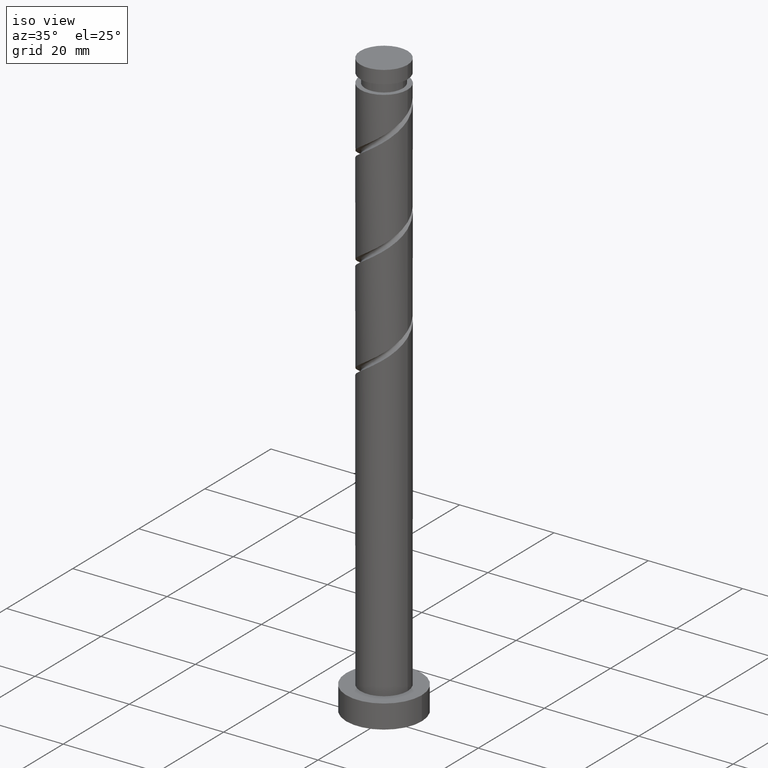
[diagram: clean part render]
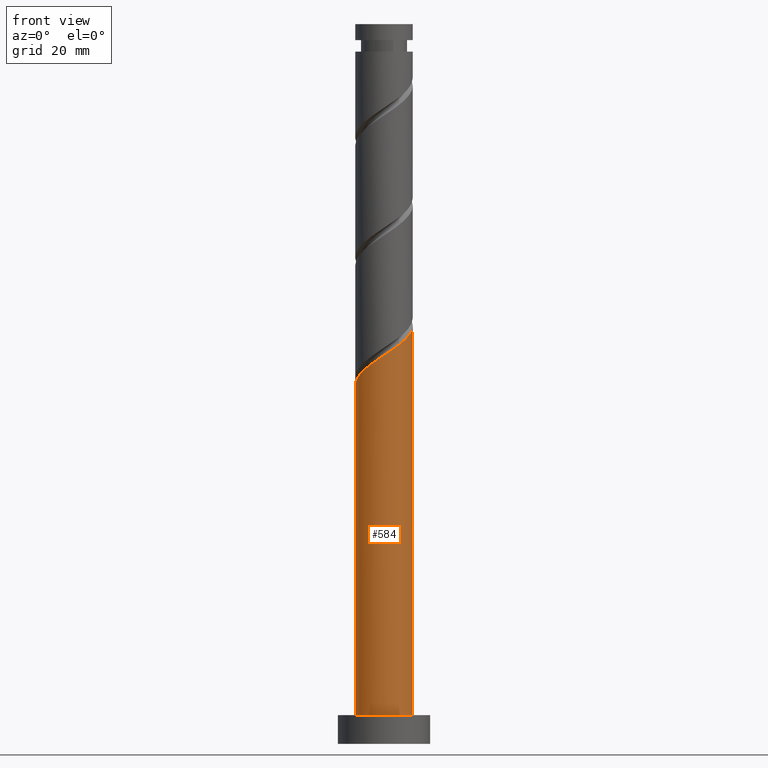
[diagram: tour spotlight — one face highlighted and labeled with its STEP entity id]
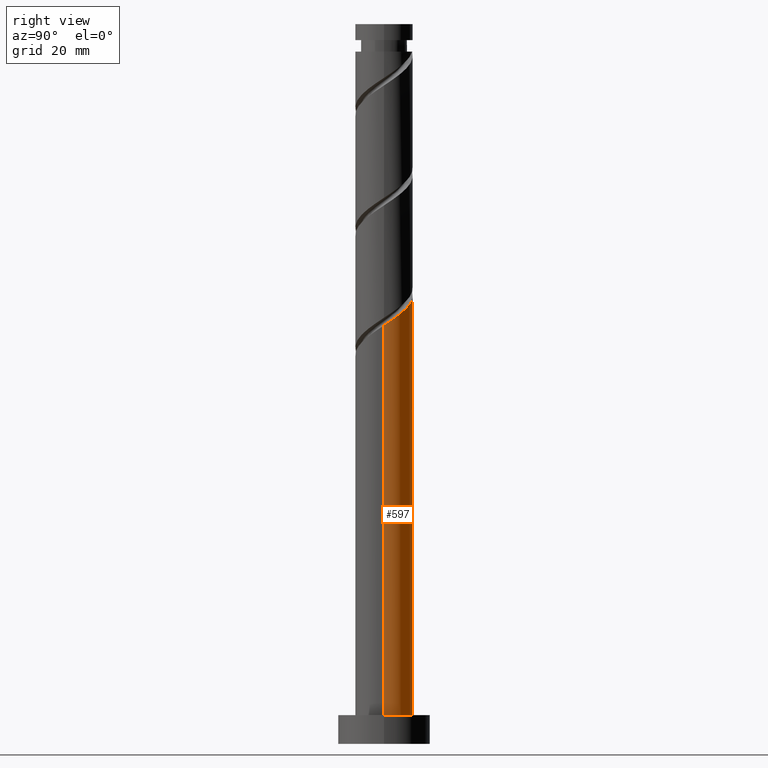
[diagram: tour spotlight — one face highlighted and labeled with its STEP entity id]
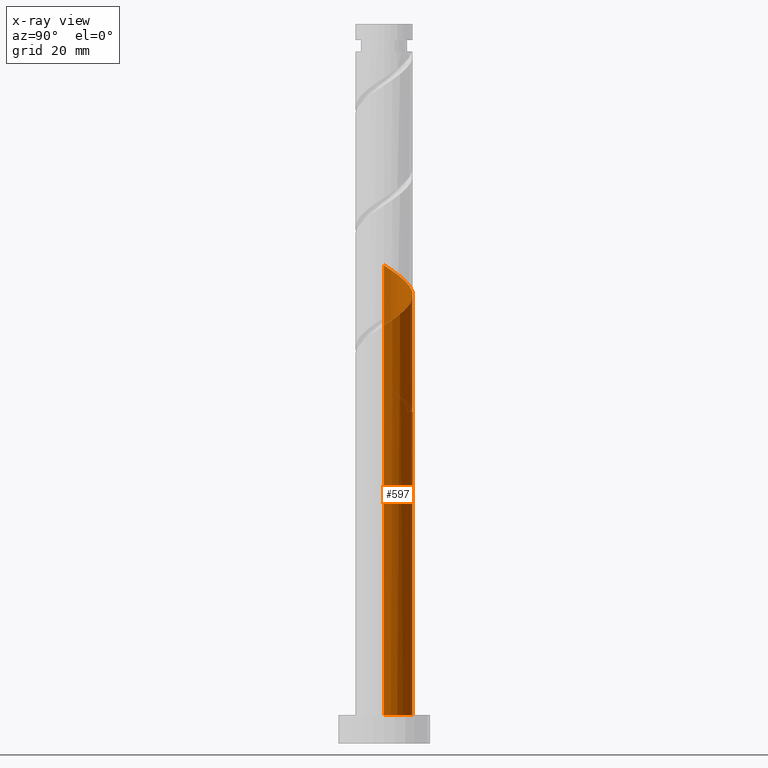
[diagram: x-ray of the same camera — body ghosted, this tour face saturated]
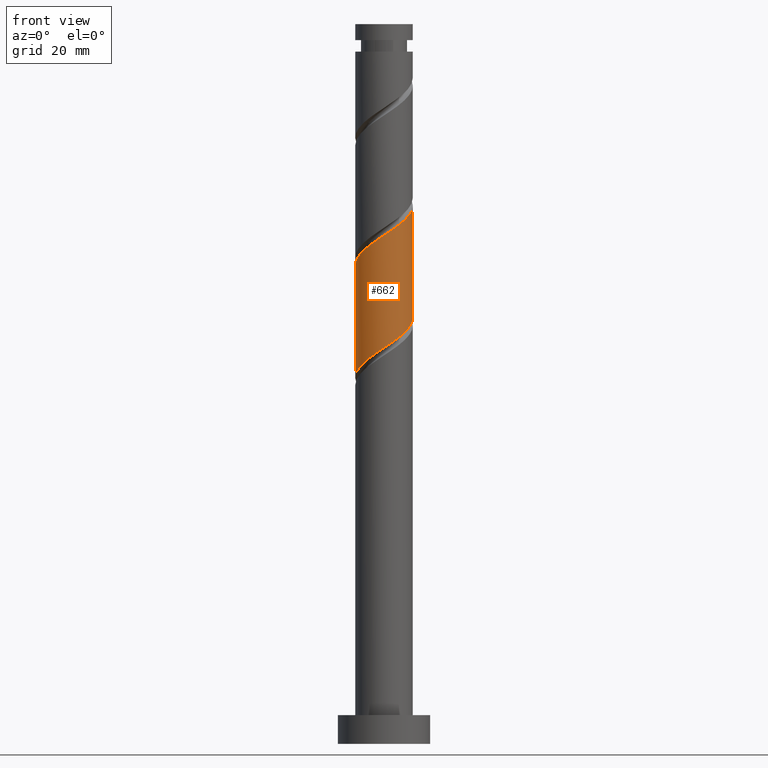
[diagram: tour spotlight — one face highlighted and labeled with its STEP entity id]
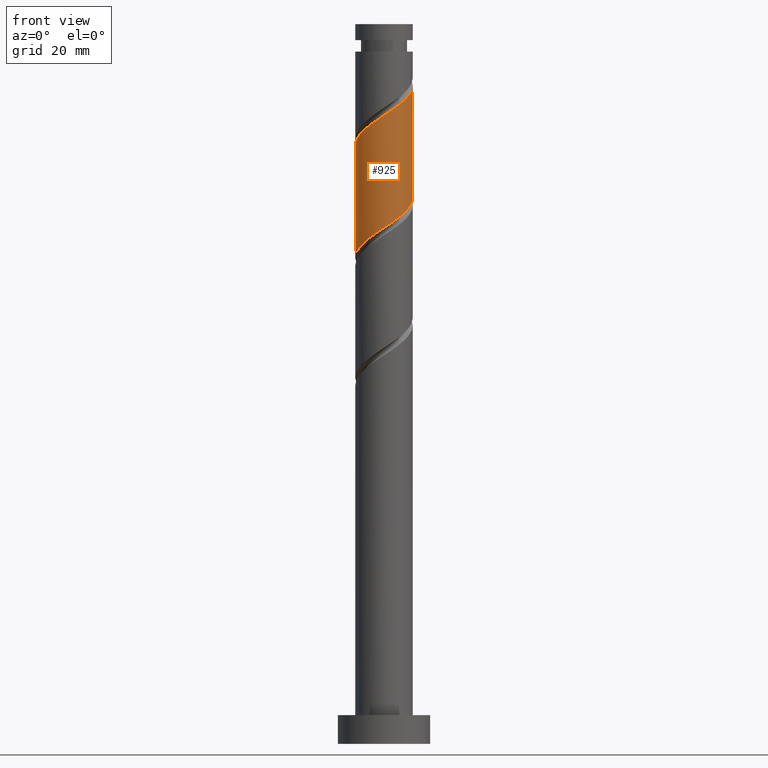
[diagram: tour spotlight — one face highlighted and labeled with its STEP entity id]
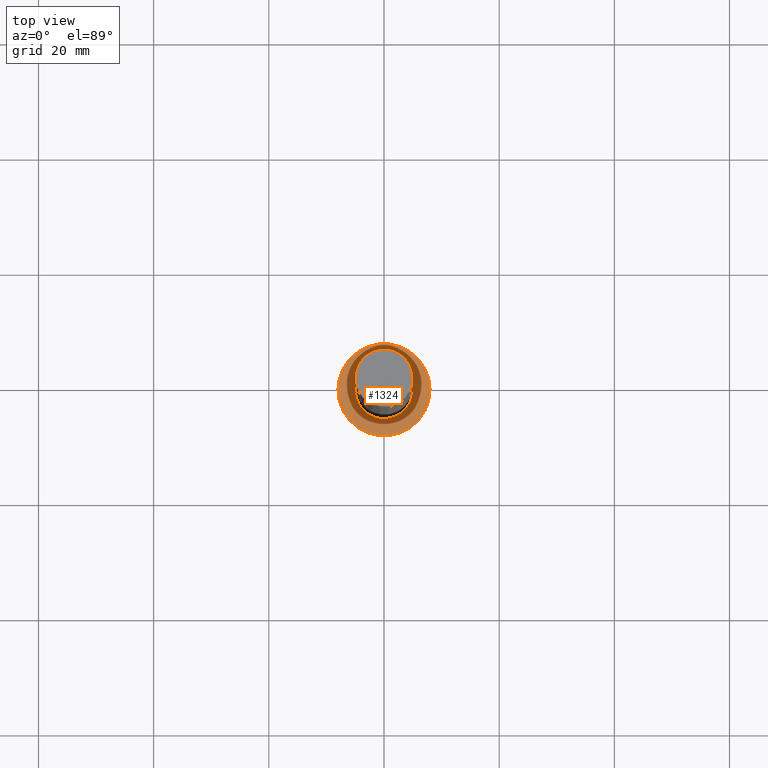
[diagram: tour spotlight — one face highlighted and labeled with its STEP entity id]
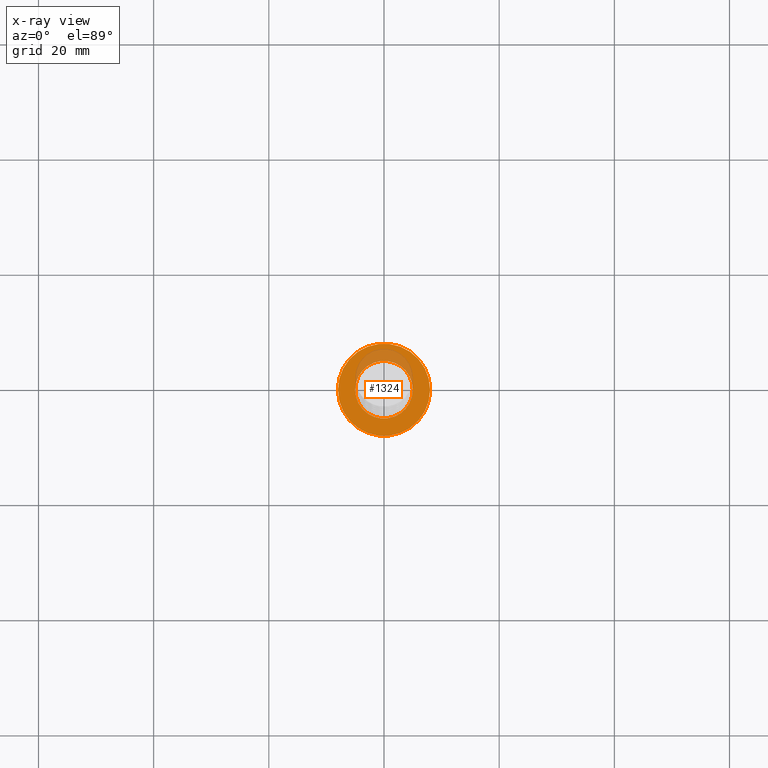
[diagram: x-ray of the same camera — body ghosted, this tour face saturated]
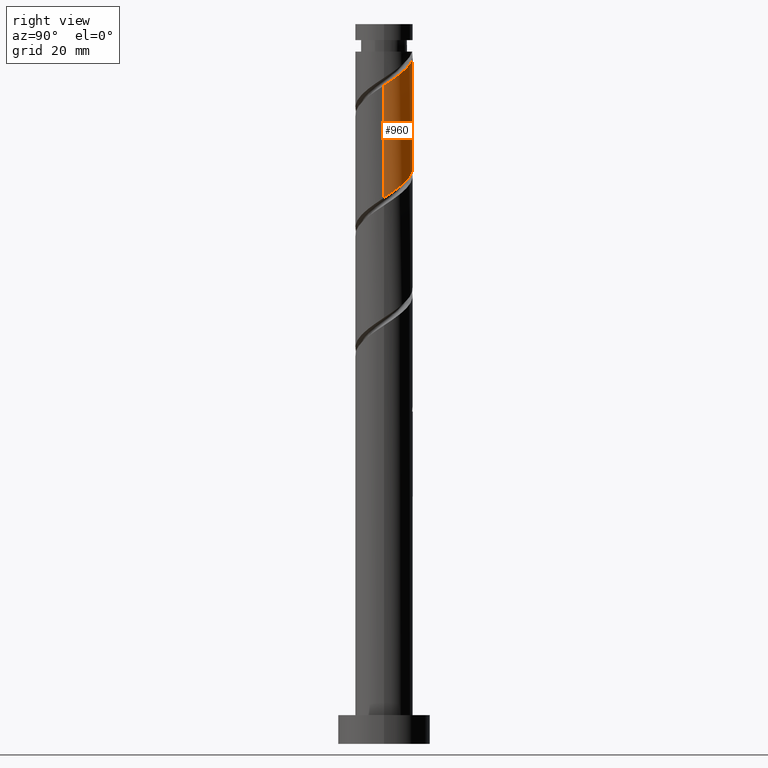
[diagram: tour spotlight — one face highlighted and labeled with its STEP entity id]
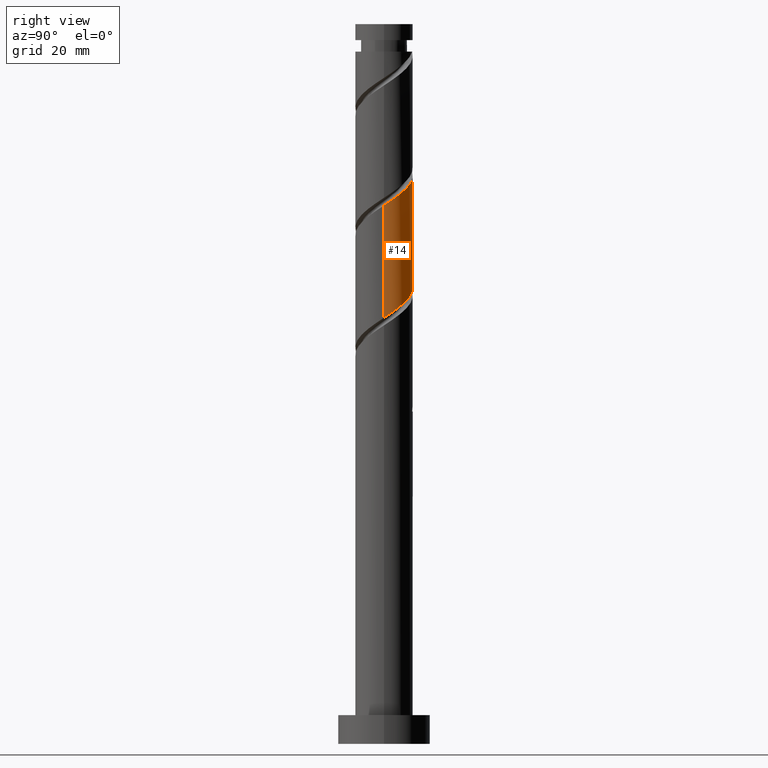
[diagram: tour spotlight — one face highlighted and labeled with its STEP entity id]
A machine part: a face-by-face anatomy tour. The part has 21 B-rep faces; the first image is the clean iso view, then the 7 largest visible faces are spotlighted one at a time (largest first), each with its STEP entity span.

Face 1 — front view, entity #584. In plain terms, the highlighted cylindrical surface (edge-blend (fillet) strip) has radius 5 mm, axis along (-0, -0, -1).
Definition (entity closure, byte-faithful):
#16 = DIRECTION ( 'NONE',  ( 1.000000000000000000, 0.000000000000000000, 0.000000000000000000 ) ) ;
#35 = CARTESIAN_POINT ( 'NONE',  ( 5.000000000000000000, 6.123233995736766282E-16, 125.0000000000000000 ) ) ;
#112 = VECTOR ( 'NONE', #752, 1000.000000000000000 ) ;
#187 = CARTESIAN_POINT ( 'NONE',  ( 5.000000000000007994, -0.2848686872321611330, 72.49206087264521159 ) ) ;
#209 = CARTESIAN_POINT ( 'NONE',  ( -2.075185990424292637, -4.549022214184805790, 66.05470773665606998 ) ) ;
#224 = ORIENTED_EDGE ( 'NONE', *, *, #762, .T. ) ;
#333 = CARTESIAN_POINT ( 'NONE',  ( -4.352708902590741502, -2.460472558129311871, 63.97137440332274849 ) ) ;
#340 = CARTESIAN_POINT ( 'NONE',  ( 0.9949874371066211864, -4.900000000000008349, 68.13804106998941279 ) ) ;
#363 = CARTESIAN_POINT ( 'NONE',  ( 4.877699385847476421, -1.354691653006748764, 71.78387440332275560 ) ) ;
#378 = CARTESIAN_POINT ( 'NONE',  ( 0.000000000000000000, 0.000000000000000000, 5.000000000000000000 ) ) ;
#433 = CARTESIAN_POINT ( 'NONE',  ( 0.2189036795163920024, -5.057590528356086246, 67.61720773665606998 ) ) ;
#438 = ORIENTED_EDGE ( 'NONE', *, *, #1042, .F. ) ;
#456 = CARTESIAN_POINT ( 'NONE',  ( -4.900000000000008349, -0.9949874371066216305, 62.92970773665608419 ) ) ;
#462 = CARTESIAN_POINT ( 'NONE',  ( -5.000000000000007994, -5.427503207520467542E-15, 62.26490529518579820 ) ) ;
#575 = AXIS2_PLACEMENT_3D ( 'NONE', #996, #1346, #886 ) ;
#582 = CARTESIAN_POINT ( 'NONE',  ( 3.149873921561772594, -3.963008333537550332, 69.70054106998941279 ) ) ;
#584 = ADVANCED_FACE ( 'NONE', ( #1491 ), #861, .T. ) ;
#589 = CARTESIAN_POINT ( 'NONE',  ( -5.000000000000007994, -5.427503207520467542E-15, 62.26490529518579820 ) ) ;
#621 = AXIS2_PLACEMENT_3D ( 'NONE', #378, #986, #16 ) ;
#643 = EDGE_CURVE ( 'NONE', #1220, #1049, #1289, .T. ) ;
#702 = CARTESIAN_POINT ( 'NONE',  ( -1.354691653006748542, -4.877699385847476421, 66.57554106998941279 ) ) ;
#732 = CARTESIAN_POINT ( 'NONE',  ( 5.000000000000007994, 4.797792890625827495E-15, 72.68157196185249802 ) ) ;
#752 = DIRECTION ( 'NONE',  ( -0.000000000000000000, -0.000000000000000000, -1.000000000000000000 ) ) ;
#762 = EDGE_CURVE ( 'NONE', #828, #1220, #923, .T. ) ;
#769 =( BOUNDED_CURVE ( )  B_SPLINE_CURVE ( 2, ( #589, #933, #456, #1419, #333, #1072, #1527, #1052, #209, #702, #948, #433, #340, #1455, #1196, #582, #1433, #970, #1317, #363, #1295, #187, #1535 ),
 .UNSPECIFIED., .F., .T. ) 
 B_SPLINE_CURVE_WITH_KNOTS ( ( 3, 2, 2, 2, 2, 2, 2, 2, 2, 2, 2, 3 ),
 ( 0.05453220231385507571, 0.06250000000000000000, 0.07499999999999995559, 0.08750000000000002220, 0.09999999999999997780, 0.1125000000000000444, 0.1250000000000000000, 0.1374999999999999556, 0.1500000000000000222, 0.1624999999999999778, 0.1750000000000000444, 0.1795322023138552769 ),
 .UNSPECIFIED. ) 
 CURVE ( )  GEOMETRIC_REPRESENTATION_ITEM ( )  RATIONAL_B_SPLINE_CURVE ( ( 0.9039174447099409537, 0.9019565955404699187, 0.9090909090909183865, 0.8978984914501343395, 0.9090909090909183865, 0.8978984914501343395, 0.9090909090909183865, 0.8978984914501343395, 0.9090909090909183865, 0.8978984914501343395, 0.9090909090909183865, 0.8978984914501343395, 0.9090909090909183865, 0.8978984914501343395, 0.9090909090909183865, 0.8978984914501343395, 0.9090909090909183865, 0.8978984914501343395, 0.9090909090909183865, 0.8978984914501343395, 0.9090909090909183865, 0.9050328050005826963, 0.9039174447099406207 ) ) 
 REPRESENTATION_ITEM ( '' )  );
#828 = VERTEX_POINT ( 'NONE', #462 ) ;
#829 = EDGE_CURVE ( 'NONE', #828, #900, #769, .T. ) ;
#861 = CYLINDRICAL_SURFACE ( 'NONE', #575, 5.000000000000000000 ) ;
#886 = DIRECTION ( 'NONE',  ( -1.000000000000000000, 0.000000000000000000, 0.000000000000000000 ) ) ;
#900 = VERTEX_POINT ( 'NONE', #732 ) ;
#923 = LINE ( 'NONE', #1427, #1363 ) ;
#933 = CARTESIAN_POINT ( 'NONE',  ( -5.000000000000009770, -0.5025189076295987212, 62.59920987059365416 ) ) ;
#948 = CARTESIAN_POINT ( 'NONE',  ( -0.5678939867451784362, -4.967644957101780001, 67.09637440332274139 ) ) ;
#963 = EDGE_LOOP ( 'NONE', ( #438, #1402, #224, #1276 ) ) ;
#970 = CARTESIAN_POINT ( 'NONE',  ( 4.220345042522135159, -2.795680327841836288, 70.74220773665609840 ) ) ;
#986 = DIRECTION ( 'NONE',  ( 0.000000000000000000, 0.000000000000000000, 1.000000000000000000 ) ) ;
#996 = CARTESIAN_POINT ( 'NONE',  ( 0.000000000000000000, 0.000000000000000000, 125.0000000000000000 ) ) ;
#1042 = EDGE_CURVE ( 'NONE', #900, #1049, #1237, .T. ) ;
#1049 = VERTEX_POINT ( 'NONE', #1480 ) ;
#1052 = CARTESIAN_POINT ( 'NONE',  ( -2.795680327841835844, -4.220345042522135159, 65.53387440332275560 ) ) ;
#1072 = CARTESIAN_POINT ( 'NONE',  ( -3.963008333537549444, -3.149873921561773038, 64.49220773665609840 ) ) ;
#1092 = CARTESIAN_POINT ( 'NONE',  ( -5.000000000000000000, 0.000000000000000000, 5.000000000000000000 ) ) ;
#1196 = CARTESIAN_POINT ( 'NONE',  ( 2.460472558129311871, -4.352708902590741502, 69.17970773665606998 ) ) ;
#1220 = VERTEX_POINT ( 'NONE', #1092 ) ;
#1237 = LINE ( 'NONE', #35, #112 ) ;
#1276 = ORIENTED_EDGE ( 'NONE', *, *, #643, .T. ) ;
#1289 = CIRCLE ( 'NONE', #621, 5.000000000000000000 ) ;
#1295 = CARTESIAN_POINT ( 'NONE',  ( 4.967644957101780001, -0.5678939867451785473, 72.30470773665608419 ) ) ;
#1317 = CARTESIAN_POINT ( 'NONE',  ( 4.549022214184805790, -2.075185990424292637, 71.26304106998941279 ) ) ;
#1346 = DIRECTION ( 'NONE',  ( -0.000000000000000000, -0.000000000000000000, -1.000000000000000000 ) ) ;
#1363 = VECTOR ( 'NONE', #1411, 1000.000000000000000 ) ;
#1402 = ORIENTED_EDGE ( 'NONE', *, *, #829, .F. ) ;
#1411 = DIRECTION ( 'NONE',  ( -0.000000000000000000, -0.000000000000000000, -1.000000000000000000 ) ) ;
#1419 = CARTESIAN_POINT ( 'NONE',  ( -4.742409471643931340, -1.771071194696850926, 63.45054106998944121 ) ) ;
#1427 = CARTESIAN_POINT ( 'NONE',  ( -5.000000000000000000, 0.000000000000000000, 125.0000000000000000 ) ) ;
#1433 = CARTESIAN_POINT ( 'NONE',  ( 3.685109482041953655, -3.379344330689691756, 70.22137440332272718 ) ) ;
#1455 = CARTESIAN_POINT ( 'NONE',  ( 1.771071194696850259, -4.742409471643931340, 68.65887440332276981 ) ) ;
#1480 = CARTESIAN_POINT ( 'NONE',  ( 5.000000000000000000, 6.123233995736766282E-16, 5.000000000000000000 ) ) ;
#1491 = FACE_OUTER_BOUND ( 'NONE', #963, .T. ) ;
#1527 = CARTESIAN_POINT ( 'NONE',  ( -3.379344330689691756, -3.685109482041953655, 65.01304106998941279 ) ) ;
#1535 = CARTESIAN_POINT ( 'NONE',  ( 5.000000000000008882, 4.797792890625827495E-15, 72.68157196185249802 ) ) ;

Face 2 — right view, entity #597. An x-ray twin of the same camera follows (body ghosted, this face saturated) — the face is partly hidden behind the body. In plain terms, the highlighted cylindrical surface (edge-blend (fillet) strip) has radius 5 mm, axis along (-0, -0, -1).
Definition (entity closure, byte-faithful):
#3 = EDGE_CURVE ( 'NONE', #900, #1292, #374, .T. ) ;
#17 = CARTESIAN_POINT ( 'NONE',  ( -5.000000000000007994, -5.427503207520467542E-15, 62.26490529518579820 ) ) ;
#21 = ORIENTED_EDGE ( 'NONE', *, *, #541, .T. ) ;
#23 = CARTESIAN_POINT ( 'NONE',  ( -4.999999999999997335, 6.926813485841104405E-15, 63.59451017812635598 ) ) ;
#28 = CARTESIAN_POINT ( 'NONE',  ( -0.2189036795163914473, 5.057590528356086246, 78.03387440332274139 ) ) ;
#33 = CARTESIAN_POINT ( 'NONE',  ( -3.379344330689685094, 3.685109482041948326, 60.84637440332276981 ) ) ;
#35 = CARTESIAN_POINT ( 'NONE',  ( 5.000000000000000000, 6.123233995736766282E-16, 125.0000000000000000 ) ) ;
#42 = VECTOR ( 'NONE', #1407, 1000.000000000000000 ) ;
#106 = EDGE_LOOP ( 'NONE', ( #992, #1082, #21, #1180, #1283, #501, #467, #821 ) ) ;
#112 = VECTOR ( 'NONE', #752, 1000.000000000000000 ) ;
#115 = CARTESIAN_POINT ( 'NONE',  ( -4.352708902590731732, 2.460472558129307874, 61.88804106998943411 ) ) ;
#116 = FACE_OUTER_BOUND ( 'NONE', #106, .T. ) ;
#123 = CARTESIAN_POINT ( 'NONE',  ( 0.9949874371066220746, 4.899999999999996803, 57.72137440332275560 ) ) ;
#124 = CARTESIAN_POINT ( 'NONE',  ( -0.9949874371066205203, 4.900000000000008349, 57.72137440332275560 ) ) ;
#135 = CARTESIAN_POINT ( 'NONE',  ( 2.075185990424293081, 4.549022214184805790, 76.47137440332274139 ) ) ;
#144 = CARTESIAN_POINT ( 'NONE',  ( -2.460472558129311871, 4.352708902590741502, 79.59637440332274139 ) ) ;
#171 = CARTESIAN_POINT ( 'NONE',  ( 3.379344330689693088, 3.685109482041953655, 75.42970773665606998 ) ) ;
#215 = AXIS2_PLACEMENT_3D ( 'NONE', #240, #731, #1479 ) ;
#240 = CARTESIAN_POINT ( 'NONE',  ( 0.000000000000000000, 0.000000000000000000, 125.0000000000000000 ) ) ;
#249 = CARTESIAN_POINT ( 'NONE',  ( -4.220345042522135159, 2.795680327841835844, 60.32554106998941279 ) ) ;
#260 = CARTESIAN_POINT ( 'NONE',  ( 0.5678939867451789913, 4.967644957101780889, 77.51304106998942700 ) ) ;
#268 = CARTESIAN_POINT ( 'NONE',  ( -1.771071194696850926, 4.742409471643931340, 58.24220773665607709 ) ) ;
#270 = CARTESIAN_POINT ( 'NONE',  ( 4.742409471643931340, 1.771071194696850259, 73.86720773665609840 ) ) ;
#318 = CIRCLE ( 'NONE', #1312, 5.000000000000000000 ) ;
#374 =( BOUNDED_CURVE ( )  B_SPLINE_CURVE ( 2, ( #479, #972, #1457, #270, #754, #1268, #171, #1228, #135, #625, #260, #28, #1113, #1239, #144, #659, #634, #1494, #650, #1385, #1121, #1011, #509 ),
 .UNSPECIFIED., .F., .T. ) 
 B_SPLINE_CURVE_WITH_KNOTS ( ( 3, 2, 2, 2, 2, 2, 2, 2, 2, 2, 2, 3 ),
 ( 0.1795322023138552769, 0.1875000000000000000, 0.1999999999999999556, 0.2125000000000000222, 0.2249999999999999778, 0.2375000000000000444, 0.2500000000000000000, 0.2624999999999999556, 0.2750000000000000222, 0.2874999999999999778, 0.3000000000000000444, 0.3045322023138551937 ),
 .UNSPECIFIED. ) 
 CURVE ( )  GEOMETRIC_REPRESENTATION_ITEM ( )  RATIONAL_B_SPLINE_CURVE ( ( 0.9039174447099406207, 0.9019565955404700297, 0.9090909090909183865, 0.8978984914501343395, 0.9090909090909183865, 0.8978984914501343395, 0.9090909090909183865, 0.8978984914501343395, 0.9090909090909183865, 0.8978984914501343395, 0.9090909090909183865, 0.8978984914501343395, 0.9090909090909183865, 0.8978984914501343395, 0.9090909090909183865, 0.8978984914501343395, 0.9090909090909183865, 0.8978984914501343395, 0.9090909090909183865, 0.8978984914501343395, 0.9090909090909183865, 0.9050328050005826963, 0.9039174447099405096 ) ) 
 REPRESENTATION_ITEM ( '' )  );
#383 = EDGE_CURVE ( 'NONE', #1292, #1518, #1274, .T. ) ;
#444 = CIRCLE ( 'NONE', #680, 5.000000000000000000 ) ;
#462 = CARTESIAN_POINT ( 'NONE',  ( -5.000000000000007994, -5.427503207520467542E-15, 62.26490529518579820 ) ) ;
#467 = ORIENTED_EDGE ( 'NONE', *, *, #1075, .F. ) ;
#476 = CARTESIAN_POINT ( 'NONE',  ( -5.000000000000007994, -5.427503207520467542E-15, 83.09823862851914100 ) ) ;
#479 = CARTESIAN_POINT ( 'NONE',  ( 5.000000000000008882, 4.797792890625827495E-15, 72.68157196185249802 ) ) ;
#501 = ORIENTED_EDGE ( 'NONE', *, *, #1197, .T. ) ;
#509 = CARTESIAN_POINT ( 'NONE',  ( -5.000000000000007994, -5.427503207520467542E-15, 83.09823862851914100 ) ) ;
#515 = CARTESIAN_POINT ( 'NONE',  ( -0.5678939867451756607, 4.967644957101771119, 58.76304106998942700 ) ) ;
#517 = CARTESIAN_POINT ( 'NONE',  ( -3.149873921561773038, 3.963008333537549444, 59.28387440332276270 ) ) ;
#541 = EDGE_CURVE ( 'NONE', #1049, #1220, #318, .T. ) ;
#597 = ADVANCED_FACE ( 'NONE', ( #116 ), #1217, .T. ) ;
#606 = VERTEX_POINT ( 'NONE', #124 ) ;
#625 = CARTESIAN_POINT ( 'NONE',  ( 1.354691653006749208, 4.877699385847476421, 76.99220773665611262 ) ) ;
#630 = CARTESIAN_POINT ( 'NONE',  ( 0.9949874371066220746, 4.899999999999996803, 57.72137440332275560 ) ) ;
#634 = CARTESIAN_POINT ( 'NONE',  ( -3.685109482041953655, 3.379344330689691756, 80.63804106998938437 ) ) ;
#639 = CARTESIAN_POINT ( 'NONE',  ( -3.963008333537539229, 3.149873921561767265, 61.36720773665606998 ) ) ;
#650 = CARTESIAN_POINT ( 'NONE',  ( -4.549022214184805790, 2.075185990424291749, 81.67970773665608419 ) ) ;
#659 = CARTESIAN_POINT ( 'NONE',  ( -3.149873921561773038, 3.963008333537549444, 80.11720773665609840 ) ) ;
#680 = AXIS2_PLACEMENT_3D ( 'NONE', #977, #1337, #1244 ) ;
#696 = DIRECTION ( 'NONE',  ( 0.000000000000000000, 0.000000000000000000, 1.000000000000000000 ) ) ;
#707 =( BOUNDED_CURVE ( )  B_SPLINE_CURVE ( 2, ( #985, #1209, #1330, #1364, #115, #639, #33, #850, #860, #868, #515, #1354, #123 ),
 .UNSPECIFIED., .F., .T. ) 
 B_SPLINE_CURVE_WITH_KNOTS ( ( 3, 2, 2, 2, 2, 2, 3 ),
 ( 0.9295322023138552492, 0.9375000000000000000, 0.9499999999999999556, 0.9625000000000000222, 0.9749999999999999778, 0.9875000000000000444, 1.000000000000000000 ),
 .UNSPECIFIED. ) 
 CURVE ( )  GEOMETRIC_REPRESENTATION_ITEM ( )  RATIONAL_B_SPLINE_CURVE ( ( 0.9039174447099320719, 0.9019565955404615920, 0.9090909090909098378, 0.8978984914501261239, 0.9090909090909098378, 0.8978984914501261239, 0.9090909090909098378, 0.8978984914501261239, 0.9090909090909098378, 0.8978984914501261239, 0.9090909090909098378, 0.8978984914501261239, 0.9090909090909098378 ) ) 
 REPRESENTATION_ITEM ( '' )  );
#731 = DIRECTION ( 'NONE',  ( -0.000000000000000000, -0.000000000000000000, -1.000000000000000000 ) ) ;
#732 = CARTESIAN_POINT ( 'NONE',  ( 5.000000000000007994, 4.797792890625827495E-15, 72.68157196185249802 ) ) ;
#741 = CARTESIAN_POINT ( 'NONE',  ( -4.967644957101780001, 0.5678939867451782142, 61.88804106998941990 ) ) ;
#752 = DIRECTION ( 'NONE',  ( -0.000000000000000000, -0.000000000000000000, -1.000000000000000000 ) ) ;
#754 = CARTESIAN_POINT ( 'NONE',  ( 4.352708902590741502, 2.460472558129310983, 74.38804106998939858 ) ) ;
#762 = EDGE_CURVE ( 'NONE', #828, #1220, #923, .T. ) ;
#763 = CARTESIAN_POINT ( 'NONE',  ( -5.000000000000007105, 0.2848686872321731789, 62.07539420597852597 ) ) ;
#773 = CARTESIAN_POINT ( 'NONE',  ( -2.460472558129311871, 4.352708902590741502, 58.76304106998941279 ) ) ;
#821 = ORIENTED_EDGE ( 'NONE', *, *, #383, .F. ) ;
#828 = VERTEX_POINT ( 'NONE', #462 ) ;
#850 = CARTESIAN_POINT ( 'NONE',  ( -2.795680327841827406, 4.220345042522127166, 60.32554106998940568 ) ) ;
#860 = CARTESIAN_POINT ( 'NONE',  ( -2.075185990424286420, 4.549022214184796908, 59.80470773665609130 ) ) ;
#862 = CARTESIAN_POINT ( 'NONE',  ( -3.685109482041953655, 3.379344330689691756, 59.80470773665609130 ) ) ;
#868 = CARTESIAN_POINT ( 'NONE',  ( -1.354691653006743879, 4.877699385847463986, 59.28387440332273428 ) ) ;
#900 = VERTEX_POINT ( 'NONE', #732 ) ;
#923 = LINE ( 'NONE', #1427, #1363 ) ;
#934 = CARTESIAN_POINT ( 'NONE',  ( 0.000000000000000000, 0.000000000000000000, 5.000000000000000000 ) ) ;
#972 = CARTESIAN_POINT ( 'NONE',  ( 5.000000000000007994, 0.5025189076296107116, 73.01587653726033977 ) ) ;
#977 = CARTESIAN_POINT ( 'NONE',  ( 0.000000000000000000, 0.000000000000000000, 57.72137440332276981 ) ) ;
#985 = CARTESIAN_POINT ( 'NONE',  ( -4.999999999999998224, 6.926813485841104405E-15, 63.59451017812635598 ) ) ;
#992 = ORIENTED_EDGE ( 'NONE', *, *, #3, .F. ) ;
#1009 = CARTESIAN_POINT ( 'NONE',  ( -4.549022214184805790, 2.075185990424291749, 60.84637440332274849 ) ) ;
#1011 = CARTESIAN_POINT ( 'NONE',  ( -5.000000000000007994, 0.2848686872321657959, 82.90872753931188299 ) ) ;
#1016 = CARTESIAN_POINT ( 'NONE',  ( -0.9949874371066205203, 4.900000000000008349, 57.72137440332275560 ) ) ;
#1030 = CARTESIAN_POINT ( 'NONE',  ( -5.000000000000000000, 0.000000000000000000, 125.0000000000000000 ) ) ;
#1042 = EDGE_CURVE ( 'NONE', #900, #1049, #1237, .T. ) ;
#1049 = VERTEX_POINT ( 'NONE', #1480 ) ;
#1050 = EDGE_CURVE ( 'NONE', #606, #828, #1519, .T. ) ;
#1075 = EDGE_CURVE ( 'NONE', #1518, #1173, #707, .T. ) ;
#1082 = ORIENTED_EDGE ( 'NONE', *, *, #1042, .T. ) ;
#1092 = CARTESIAN_POINT ( 'NONE',  ( -5.000000000000000000, 0.000000000000000000, 5.000000000000000000 ) ) ;
#1113 = CARTESIAN_POINT ( 'NONE',  ( -0.9949874371066207424, 4.900000000000008349, 78.55470773665611262 ) ) ;
#1121 = CARTESIAN_POINT ( 'NONE',  ( -4.967644957101780001, 0.5678939867451782142, 82.72137440332275560 ) ) ;
#1173 = VERTEX_POINT ( 'NONE', #630 ) ;
#1180 = ORIENTED_EDGE ( 'NONE', *, *, #762, .F. ) ;
#1183 = DIRECTION ( 'NONE',  ( 1.000000000000000000, 0.000000000000000000, 0.000000000000000000 ) ) ;
#1197 = EDGE_CURVE ( 'NONE', #606, #1173, #444, .T. ) ;
#1209 = CARTESIAN_POINT ( 'NONE',  ( -4.999999999999996447, 0.5025189076296100454, 63.26020560271851423 ) ) ;
#1217 = CYLINDRICAL_SURFACE ( 'NONE', #215, 5.000000000000000000 ) ;
#1220 = VERTEX_POINT ( 'NONE', #1092 ) ;
#1228 = CARTESIAN_POINT ( 'NONE',  ( 2.795680327841836288, 4.220345042522134271, 75.95054106998939858 ) ) ;
#1237 = LINE ( 'NONE', #35, #112 ) ;
#1239 = CARTESIAN_POINT ( 'NONE',  ( -1.771071194696850926, 4.742409471643931340, 79.07554106998944121 ) ) ;
#1244 = DIRECTION ( 'NONE',  ( 0.000000000000000000, 1.000000000000000000, -2.775557561562891351E-15 ) ) ;
#1268 = CARTESIAN_POINT ( 'NONE',  ( 3.963008333537550332, 3.149873921561772594, 74.90887440332275560 ) ) ;
#1274 = LINE ( 'NONE', #1030, #42 ) ;
#1283 = ORIENTED_EDGE ( 'NONE', *, *, #1050, .F. ) ;
#1292 = VERTEX_POINT ( 'NONE', #476 ) ;
#1312 = AXIS2_PLACEMENT_3D ( 'NONE', #934, #696, #1183 ) ;
#1330 = CARTESIAN_POINT ( 'NONE',  ( -4.899999999999997691, 0.9949874371066209644, 62.92970773665611972 ) ) ;
#1337 = DIRECTION ( 'NONE',  ( -7.703719777548936406E-31, -3.469446951953613400E-15, -1.000000000000000000 ) ) ;
#1354 = CARTESIAN_POINT ( 'NONE',  ( 0.2189036795163934179, 5.057590528356072035, 58.24220773665606998 ) ) ;
#1363 = VECTOR ( 'NONE', #1411, 1000.000000000000000 ) ;
#1364 = CARTESIAN_POINT ( 'NONE',  ( -4.742409471643919794, 1.771071194696848261, 62.40887440332274139 ) ) ;
#1385 = CARTESIAN_POINT ( 'NONE',  ( -4.877699385847476421, 1.354691653006748542, 82.20054106998944121 ) ) ;
#1407 = DIRECTION ( 'NONE',  ( -0.000000000000000000, -0.000000000000000000, -1.000000000000000000 ) ) ;
#1411 = DIRECTION ( 'NONE',  ( -0.000000000000000000, -0.000000000000000000, -1.000000000000000000 ) ) ;
#1427 = CARTESIAN_POINT ( 'NONE',  ( -5.000000000000000000, 0.000000000000000000, 125.0000000000000000 ) ) ;
#1457 = CARTESIAN_POINT ( 'NONE',  ( 4.900000000000008349, 0.9949874371066211864, 73.34637440332274139 ) ) ;
#1472 = CARTESIAN_POINT ( 'NONE',  ( -4.877699385847476421, 1.354691653006748542, 61.36720773665608419 ) ) ;
#1479 = DIRECTION ( 'NONE',  ( -1.000000000000000000, 0.000000000000000000, 0.000000000000000000 ) ) ;
#1480 = CARTESIAN_POINT ( 'NONE',  ( 5.000000000000000000, 6.123233995736766282E-16, 5.000000000000000000 ) ) ;
#1494 = CARTESIAN_POINT ( 'NONE',  ( -4.220345042522135159, 2.795680327841835844, 81.15887440332276981 ) ) ;
#1518 = VERTEX_POINT ( 'NONE', #23 ) ;
#1519 =( BOUNDED_CURVE ( )  B_SPLINE_CURVE ( 2, ( #1016, #268, #773, #517, #862, #249, #1009, #1472, #741, #763, #17 ),
 .UNSPECIFIED., .F., .T. ) 
 B_SPLINE_CURVE_WITH_KNOTS ( ( 3, 2, 2, 2, 2, 3 ),
 ( 0.000000000000000000, 0.01249999999999995559, 0.02500000000000002220, 0.03749999999999997780, 0.05000000000000004441, 0.05453220231385507571 ),
 .UNSPECIFIED. ) 
 CURVE ( )  GEOMETRIC_REPRESENTATION_ITEM ( )  RATIONAL_B_SPLINE_CURVE ( ( 0.9090909090909183865, 0.8978984914501343395, 0.9090909090909183865, 0.8978984914501343395, 0.9090909090909183865, 0.8978984914501343395, 0.9090909090909183865, 0.8978984914501343395, 0.9090909090909183865, 0.9050328050005830294, 0.9039174447099409537 ) ) 
 REPRESENTATION_ITEM ( '' )  );

Face 3 — front view, entity #662. In plain terms, the highlighted cylindrical surface (edge-blend (fillet) strip) has radius 5 mm, axis along (-0, -0, -1).
Definition (entity closure, byte-faithful):
#5 = DIRECTION ( 'NONE',  ( -0.000000000000000000, -0.000000000000000000, -1.000000000000000000 ) ) ;
#23 = CARTESIAN_POINT ( 'NONE',  ( -4.999999999999997335, 6.926813485841104405E-15, 63.59451017812635598 ) ) ;
#26 = CARTESIAN_POINT ( 'NONE',  ( -2.075185990424292637, -4.549022214184805790, 86.88804106998939858 ) ) ;
#39 = EDGE_LOOP ( 'NONE', ( #1387, #365, #1301, #1541 ) ) ;
#42 = VECTOR ( 'NONE', #1407, 1000.000000000000000 ) ;
#79 = CARTESIAN_POINT ( 'NONE',  ( -4.549022214184796908, -2.075185990424286420, 65.01304106998942700 ) ) ;
#87 = CARTESIAN_POINT ( 'NONE',  ( -1.771071194696848261, -4.742409471643918906, 67.61720773665606998 ) ) ;
#142 = CARTESIAN_POINT ( 'NONE',  ( -5.000000000000009770, -0.5025189076296061597, 83.43254320392699697 ) ) ;
#202 = CARTESIAN_POINT ( 'NONE',  ( 3.963008333537539229, -3.149873921561767265, 71.78387440332275560 ) ) ;
#247 = CARTESIAN_POINT ( 'NONE',  ( 5.000000000000007994, 4.797792890625827495E-15, 93.51490529518578398 ) ) ;
#257 = DIRECTION ( 'NONE',  ( -1.000000000000000000, 0.000000000000000000, 0.000000000000000000 ) ) ;
#287 = CARTESIAN_POINT ( 'NONE',  ( 3.149873921561772594, -3.963008333537550332, 90.53387440332276981 ) ) ;
#365 = ORIENTED_EDGE ( 'NONE', *, *, #1066, .F. ) ;
#379 = CARTESIAN_POINT ( 'NONE',  ( -5.000000000000007994, -5.427503207520467542E-15, 83.09823862851914100 ) ) ;
#383 = EDGE_CURVE ( 'NONE', #1292, #1518, #1274, .T. ) ;
#398 = CARTESIAN_POINT ( 'NONE',  ( -3.963008333537549444, -3.149873921561773038, 85.32554106998944121 ) ) ;
#408 = CARTESIAN_POINT ( 'NONE',  ( 4.549022214184805790, -2.075185990424292637, 92.09637440332274139 ) ) ;
#440 = CARTESIAN_POINT ( 'NONE',  ( 1.354691653006743657, -4.877699385847463986, 69.70054106998942700 ) ) ;
#449 = CARTESIAN_POINT ( 'NONE',  ( -4.999999999999996447, -0.2848686872321600227, 63.78402126733362110 ) ) ;
#476 = CARTESIAN_POINT ( 'NONE',  ( -5.000000000000007994, -5.427503207520467542E-15, 83.09823862851914100 ) ) ;
#485 = DIRECTION ( 'NONE',  ( -0.000000000000000000, -0.000000000000000000, -1.000000000000000000 ) ) ;
#490 = VERTEX_POINT ( 'NONE', #917 ) ;
#496 = FACE_OUTER_BOUND ( 'NONE', #39, .T. ) ;
#497 = CARTESIAN_POINT ( 'NONE',  ( -4.900000000000008349, -0.9949874371066216305, 83.76304106998938437 ) ) ;
#507 = CARTESIAN_POINT ( 'NONE',  ( -1.354691653006748542, -4.877699385847476421, 87.40887440332274139 ) ) ;
#556 = CARTESIAN_POINT ( 'NONE',  ( -3.149873921561767265, -3.963008333537539229, 66.57554106998939858 ) ) ;
#563 = CARTESIAN_POINT ( 'NONE',  ( 4.352708902590731732, -2.460472558129308318, 72.30470773665611262 ) ) ;
#573 = CARTESIAN_POINT ( 'NONE',  ( -2.460472558129308318, -4.352708902590731732, 67.09637440332274139 ) ) ;
#587 = VERTEX_POINT ( 'NONE', #1338 ) ;
#595 = AXIS2_PLACEMENT_3D ( 'NONE', #869, #485, #257 ) ;
#619 = EDGE_CURVE ( 'NONE', #490, #587, #1100, .T. ) ;
#632 = CARTESIAN_POINT ( 'NONE',  ( -4.742409471643931340, -1.771071194696850926, 84.28387440332274139 ) ) ;
#641 = CARTESIAN_POINT ( 'NONE',  ( -4.352708902590741502, -2.460472558129311871, 84.80470773665608419 ) ) ;
#662 = ADVANCED_FACE ( 'NONE', ( #496 ), #877, .T. ) ;
#678 = CARTESIAN_POINT ( 'NONE',  ( 4.999999999999998224, -0.5025189076296038282, 73.67687226938518563 ) ) ;
#695 = CARTESIAN_POINT ( 'NONE',  ( 4.742409471643918906, -1.771071194696848705, 72.82554106998941279 ) ) ;
#722 = VECTOR ( 'NONE', #5, 1000.000000000000000 ) ;
#735 = EDGE_CURVE ( 'NONE', #587, #1518, #964, .T. ) ;
#781 = CARTESIAN_POINT ( 'NONE',  ( 4.877699385847476421, -1.354691653006748764, 92.61720773665606998 ) ) ;
#816 = CARTESIAN_POINT ( 'NONE',  ( 4.899999999999997691, -0.9949874371066218526, 73.34637440332275560 ) ) ;
#824 = CARTESIAN_POINT ( 'NONE',  ( 3.379344330689683762, -3.685109482041948770, 71.26304106998942700 ) ) ;
#831 = CARTESIAN_POINT ( 'NONE',  ( 2.795680327841826962, -4.220345042522128054, 70.74220773665608419 ) ) ;
#854 = CARTESIAN_POINT ( 'NONE',  ( -3.379344330689691756, -3.685109482041953655, 85.84637440332275560 ) ) ;
#869 = CARTESIAN_POINT ( 'NONE',  ( 0.000000000000000000, 0.000000000000000000, 125.0000000000000000 ) ) ;
#876 = CARTESIAN_POINT ( 'NONE',  ( 5.000000000000007994, -0.2848686872321664065, 93.32539420597852597 ) ) ;
#877 = CYLINDRICAL_SURFACE ( 'NONE', #595, 5.000000000000000000 ) ;
#887 = CARTESIAN_POINT ( 'NONE',  ( 0.9949874371066211864, -4.900000000000008349, 88.97137440332276981 ) ) ;
#896 = CARTESIAN_POINT ( 'NONE',  ( 3.685109482041953655, -3.379344330689691756, 91.05470773665605577 ) ) ;
#917 = CARTESIAN_POINT ( 'NONE',  ( 5.000000000000007994, 4.797792890625827495E-15, 93.51490529518578398 ) ) ;
#940 = CARTESIAN_POINT ( 'NONE',  ( -4.999999999999998224, 6.926813485841104405E-15, 63.59451017812635598 ) ) ;
#964 =( BOUNDED_CURVE ( )  B_SPLINE_CURVE ( 2, ( #1550, #678, #816, #695, #563, #202, #824, #831, #1557, #440, #1303, #1182, #1190, #87, #573, #556, #1079, #1309, #79, #1062, #1167, #449, #940 ),
 .UNSPECIFIED., .F., .T. ) 
 B_SPLINE_CURVE_WITH_KNOTS ( ( 3, 2, 2, 2, 2, 2, 2, 2, 2, 2, 2, 3 ),
 ( 0.8045322023138551382, 0.8125000000000000000, 0.8249999999999999556, 0.8375000000000000222, 0.8499999999999999778, 0.8625000000000000444, 0.8750000000000000000, 0.8874999999999999556, 0.9000000000000000222, 0.9124999999999999778, 0.9250000000000000444, 0.9295322023138552492 ),
 .UNSPECIFIED. ) 
 CURVE ( )  GEOMETRIC_REPRESENTATION_ITEM ( )  RATIONAL_B_SPLINE_CURVE ( ( 0.9039174447099322940, 0.9019565955404614810, 0.9090909090909098378, 0.8978984914501261239, 0.9090909090909098378, 0.8978984914501261239, 0.9090909090909098378, 0.8978984914501261239, 0.9090909090909098378, 0.8978984914501261239, 0.9090909090909098378, 0.8978984914501261239, 0.9090909090909098378, 0.8978984914501261239, 0.9090909090909098378, 0.8978984914501261239, 0.9090909090909098378, 0.8978984914501261239, 0.9090909090909098378, 0.8978984914501261239, 0.9090909090909098378, 0.9050328050005742586, 0.9039174447099320719 ) ) 
 REPRESENTATION_ITEM ( '' )  );
#997 = CARTESIAN_POINT ( 'NONE',  ( 0.2189036795163920024, -5.057590528356086246, 88.45054106998945542 ) ) ;
#1030 = CARTESIAN_POINT ( 'NONE',  ( -5.000000000000000000, 0.000000000000000000, 125.0000000000000000 ) ) ;
#1062 = CARTESIAN_POINT ( 'NONE',  ( -4.877699385847463986, -1.354691653006743879, 64.49220773665608419 ) ) ;
#1066 = EDGE_CURVE ( 'NONE', #1292, #490, #1417, .T. ) ;
#1079 = CARTESIAN_POINT ( 'NONE',  ( -3.685109482041948770, -3.379344330689683762, 66.05470773665606998 ) ) ;
#1100 = LINE ( 'NONE', #1110, #722 ) ;
#1110 = CARTESIAN_POINT ( 'NONE',  ( 5.000000000000000000, 6.123233995736766282E-16, 125.0000000000000000 ) ) ;
#1119 = CARTESIAN_POINT ( 'NONE',  ( -2.795680327841835844, -4.220345042522135159, 86.36720773665608419 ) ) ;
#1167 = CARTESIAN_POINT ( 'NONE',  ( -4.967644957101771119, -0.5678939867451754386, 63.97137440332276270 ) ) ;
#1182 = CARTESIAN_POINT ( 'NONE',  ( -0.2189036795163941118, -5.057590528356072035, 68.65887440332272718 ) ) ;
#1190 = CARTESIAN_POINT ( 'NONE',  ( -0.9949874371066216305, -4.899999999999997691, 68.13804106998941279 ) ) ;
#1226 = CARTESIAN_POINT ( 'NONE',  ( 1.771071194696850259, -4.742409471643931340, 89.49220773665608419 ) ) ;
#1266 = CARTESIAN_POINT ( 'NONE',  ( 4.967644957101780001, -0.5678939867451785473, 93.13804106998939858 ) ) ;
#1274 = LINE ( 'NONE', #1030, #42 ) ;
#1292 = VERTEX_POINT ( 'NONE', #476 ) ;
#1301 = ORIENTED_EDGE ( 'NONE', *, *, #383, .T. ) ;
#1303 = CARTESIAN_POINT ( 'NONE',  ( 0.5678939867451748835, -4.967644957101771119, 69.17970773665609840 ) ) ;
#1309 = CARTESIAN_POINT ( 'NONE',  ( -4.220345042522127166, -2.795680327841826962, 65.53387440332272718 ) ) ;
#1338 = CARTESIAN_POINT ( 'NONE',  ( 4.999999999999996447, 6.357075580079280083E-15, 74.01117684479302739 ) ) ;
#1339 = CARTESIAN_POINT ( 'NONE',  ( 2.460472558129311871, -4.352708902590741502, 90.01304106998939858 ) ) ;
#1383 = CARTESIAN_POINT ( 'NONE',  ( 4.220345042522135159, -2.795680327841836288, 91.57554106998944121 ) ) ;
#1387 = ORIENTED_EDGE ( 'NONE', *, *, #619, .F. ) ;
#1407 = DIRECTION ( 'NONE',  ( -0.000000000000000000, -0.000000000000000000, -1.000000000000000000 ) ) ;
#1417 =( BOUNDED_CURVE ( )  B_SPLINE_CURVE ( 2, ( #379, #142, #497, #632, #641, #398, #854, #1119, #26, #507, #1492, #997, #887, #1226, #1339, #287, #896, #1383, #408, #781, #1266, #876, #247 ),
 .UNSPECIFIED., .F., .T. ) 
 B_SPLINE_CURVE_WITH_KNOTS ( ( 3, 2, 2, 2, 2, 2, 2, 2, 2, 2, 2, 3 ),
 ( 0.3045322023138551937, 0.3125000000000000000, 0.3249999999999999556, 0.3375000000000000222, 0.3499999999999999778, 0.3625000000000000444, 0.3750000000000000000, 0.3874999999999999556, 0.4000000000000000222, 0.4124999999999999778, 0.4250000000000000444, 0.4295322023138551937 ),
 .UNSPECIFIED. ) 
 CURVE ( )  GEOMETRIC_REPRESENTATION_ITEM ( )  RATIONAL_B_SPLINE_CURVE ( ( 0.9039174447099405096, 0.9019565955404698077, 0.9090909090909183865, 0.8978984914501343395, 0.9090909090909183865, 0.8978984914501343395, 0.9090909090909183865, 0.8978984914501343395, 0.9090909090909183865, 0.8978984914501343395, 0.9090909090909183865, 0.8978984914501343395, 0.9090909090909183865, 0.8978984914501343395, 0.9090909090909183865, 0.8978984914501343395, 0.9090909090909183865, 0.8978984914501343395, 0.9090909090909183865, 0.8978984914501343395, 0.9090909090909183865, 0.9050328050005826963, 0.9039174447099405096 ) ) 
 REPRESENTATION_ITEM ( '' )  );
#1492 = CARTESIAN_POINT ( 'NONE',  ( -0.5678939867451784362, -4.967644957101780001, 87.92970773665608419 ) ) ;
#1518 = VERTEX_POINT ( 'NONE', #23 ) ;
#1541 = ORIENTED_EDGE ( 'NONE', *, *, #735, .F. ) ;
#1550 = CARTESIAN_POINT ( 'NONE',  ( 4.999999999999996447, 6.357075580079280083E-15, 74.01117684479302739 ) ) ;
#1557 = CARTESIAN_POINT ( 'NONE',  ( 2.075185990424286420, -4.549022214184796908, 70.22137440332274139 ) ) ;

Face 4 — front view, entity #925. In plain terms, the highlighted cylindrical surface (edge-blend (fillet) strip) has radius 5 mm, axis along (-0, -0, -1).
Definition (entity closure, byte-faithful):
#4 = CARTESIAN_POINT ( 'NONE',  ( 5.000000000000000000, 6.123233995736766282E-16, 125.0000000000000000 ) ) ;
#8 = ORIENTED_EDGE ( 'NONE', *, *, #609, .T. ) ;
#34 = CARTESIAN_POINT ( 'NONE',  ( -4.352708902590741502, -2.460472558129311871, 105.6380410699894128 ) ) ;
#62 = CARTESIAN_POINT ( 'NONE',  ( -4.549022214184796908, -2.075185990424286420, 85.84637440332278402 ) ) ;
#69 = CARTESIAN_POINT ( 'NONE',  ( -0.2189036795163941118, -5.057590528356072035, 89.49220773665605577 ) ) ;
#127 = VERTEX_POINT ( 'NONE', #289 ) ;
#151 = CARTESIAN_POINT ( 'NONE',  ( -5.000000000000008882, -2.878675734375496339E-15, 103.9315719618524696 ) ) ;
#154 = CARTESIAN_POINT ( 'NONE',  ( -5.000000000000007994, -2.878675734375495945E-15, 103.9315719618524696 ) ) ;
#162 = CARTESIAN_POINT ( 'NONE',  ( 4.999999999999996447, 6.357075580079280083E-15, 94.84451017812631335 ) ) ;
#164 =( BOUNDED_CURVE ( )  B_SPLINE_CURVE ( 2, ( #162, #373, #864, #251, #529, #1018, #178, #553, #673, #302, #936, #69, #1422, #1154, #328, #183, #1056, #429, #62, #1538, #905, #445, #1161 ),
 .UNSPECIFIED., .F., .T. ) 
 B_SPLINE_CURVE_WITH_KNOTS ( ( 3, 2, 2, 2, 2, 2, 2, 2, 2, 2, 2, 3 ),
 ( 0.5545322023138552492, 0.5625000000000000000, 0.5749999999999999556, 0.5875000000000000222, 0.5999999999999999778, 0.6125000000000000444, 0.6250000000000000000, 0.6374999999999999556, 0.6500000000000000222, 0.6624999999999999778, 0.6750000000000000444, 0.6795322023138552492 ),
 .UNSPECIFIED. ) 
 CURVE ( )  GEOMETRIC_REPRESENTATION_ITEM ( )  RATIONAL_B_SPLINE_CURVE ( ( 0.9039174447099320719, 0.9019565955404615920, 0.9090909090909098378, 0.8978984914501261239, 0.9090909090909098378, 0.8978984914501261239, 0.9090909090909098378, 0.8978984914501261239, 0.9090909090909098378, 0.8978984914501261239, 0.9090909090909098378, 0.8978984914501261239, 0.9090909090909098378, 0.8978984914501261239, 0.9090909090909098378, 0.8978984914501261239, 0.9090909090909098378, 0.8978984914501261239, 0.9090909090909098378, 0.8978984914501261239, 0.9090909090909098378, 0.9050328050005742586, 0.9039174447099320719 ) ) 
 REPRESENTATION_ITEM ( '' )  );
#178 = CARTESIAN_POINT ( 'NONE',  ( 3.379344330689683762, -3.685109482041948770, 92.09637440332275560 ) ) ;
#183 = CARTESIAN_POINT ( 'NONE',  ( -3.149873921561767265, -3.963008333537539229, 87.40887440332275560 ) ) ;
#243 = VERTEX_POINT ( 'NONE', #154 ) ;
#248 = CARTESIAN_POINT ( 'NONE',  ( -0.5678939867451784362, -4.967644957101780001, 108.7630410699894128 ) ) ;
#251 = CARTESIAN_POINT ( 'NONE',  ( 4.742409471643918906, -1.771071194696848705, 93.65887440332274139 ) ) ;
#286 = EDGE_CURVE ( 'NONE', #1321, #930, #164, .T. ) ;
#289 = CARTESIAN_POINT ( 'NONE',  ( 5.000000000000007105, 2.248965417480856293E-15, 114.3482386285191268 ) ) ;
#302 = CARTESIAN_POINT ( 'NONE',  ( 1.354691653006743657, -4.877699385847463986, 90.53387440332274139 ) ) ;
#328 = CARTESIAN_POINT ( 'NONE',  ( -2.460472558129308318, -4.352708902590731732, 87.92970773665609840 ) ) ;
#360 = CARTESIAN_POINT ( 'NONE',  ( 4.220345042522135159, -2.795680327841836288, 112.4088744033227414 ) ) ;
#370 = CARTESIAN_POINT ( 'NONE',  ( 3.685109482041953655, -3.379344330689691756, 111.8880410699894270 ) ) ;
#373 = CARTESIAN_POINT ( 'NONE',  ( 4.999999999999996447, -0.5025189076296108226, 94.51020560271850002 ) ) ;
#387 = DIRECTION ( 'NONE',  ( -0.000000000000000000, -0.000000000000000000, -1.000000000000000000 ) ) ;
#397 = CARTESIAN_POINT ( 'NONE',  ( 0.2189036795163920024, -5.057590528356086246, 109.2838744033227414 ) ) ;
#429 = CARTESIAN_POINT ( 'NONE',  ( -4.220345042522127166, -2.795680327841826962, 86.36720773665606998 ) ) ;
#445 = CARTESIAN_POINT ( 'NONE',  ( -4.999999999999996447, -0.2848686872321600227, 84.61735460066697101 ) ) ;
#477 = CARTESIAN_POINT ( 'NONE',  ( -2.075185990424292637, -4.549022214184805790, 107.7213744033227414 ) ) ;
#505 = CARTESIAN_POINT ( 'NONE',  ( -3.379344330689691756, -3.685109482041953655, 106.6797077366560700 ) ) ;
#516 = CARTESIAN_POINT ( 'NONE',  ( -3.963008333537549444, -3.149873921561773038, 106.1588744033227698 ) ) ;
#529 = CARTESIAN_POINT ( 'NONE',  ( 4.352708902590731732, -2.460472558129308318, 93.13804106998944121 ) ) ;
#553 = CARTESIAN_POINT ( 'NONE',  ( 2.795680327841826962, -4.220345042522128054, 91.57554106998941279 ) ) ;
#570 = EDGE_CURVE ( 'NONE', #243, #127, #1255, .T. ) ;
#596 = VECTOR ( 'NONE', #1463, 1000.000000000000000 ) ;
#604 = CARTESIAN_POINT ( 'NONE',  ( -4.742409471643931340, -1.771071194696850926, 105.1172077366560842 ) ) ;
#609 = EDGE_CURVE ( 'NONE', #243, #930, #620, .T. ) ;
#612 = CARTESIAN_POINT ( 'NONE',  ( -5.000000000000000000, 0.000000000000000000, 125.0000000000000000 ) ) ;
#620 = LINE ( 'NONE', #612, #1334 ) ;
#640 = CARTESIAN_POINT ( 'NONE',  ( 4.877699385847476421, -1.354691653006748764, 113.4505410699894270 ) ) ;
#673 = CARTESIAN_POINT ( 'NONE',  ( 2.075185990424286420, -4.549022214184796908, 91.05470773665608419 ) ) ;
#715 = EDGE_LOOP ( 'NONE', ( #1212, #1095, #8, #792 ) ) ;
#724 = CARTESIAN_POINT ( 'NONE',  ( 2.460472558129311871, -4.352708902590741502, 110.8463744033227414 ) ) ;
#730 = LINE ( 'NONE', #4, #596 ) ;
#749 = CARTESIAN_POINT ( 'NONE',  ( 4.549022214184805790, -2.075185990424292637, 112.9297077366560700 ) ) ;
#792 = ORIENTED_EDGE ( 'NONE', *, *, #286, .F. ) ;
#851 = CARTESIAN_POINT ( 'NONE',  ( 5.000000000000007105, -0.2848686872321697927, 114.1587275393118404 ) ) ;
#864 = CARTESIAN_POINT ( 'NONE',  ( 4.899999999999997691, -0.9949874371066218526, 94.17970773665609840 ) ) ;
#905 = CARTESIAN_POINT ( 'NONE',  ( -4.967644957101771119, -0.5678939867451754386, 84.80470773665608419 ) ) ;
#925 = ADVANCED_FACE ( 'NONE', ( #1138 ), #1218, .T. ) ;
#930 = VERTEX_POINT ( 'NONE', #1101 ) ;
#936 = CARTESIAN_POINT ( 'NONE',  ( 0.5678939867451748835, -4.967644957101771119, 90.01304106998939858 ) ) ;
#968 = CARTESIAN_POINT ( 'NONE',  ( 4.999999999999996447, 6.357075580079280083E-15, 94.84451017812634177 ) ) ;
#969 = CARTESIAN_POINT ( 'NONE',  ( 0.9949874371066211864, -4.900000000000008349, 109.8047077366560700 ) ) ;
#1006 = CARTESIAN_POINT ( 'NONE',  ( -2.795680327841835844, -4.220345042522135159, 107.2005410699894412 ) ) ;
#1018 = CARTESIAN_POINT ( 'NONE',  ( 3.963008333537539229, -3.149873921561767265, 92.61720773665608419 ) ) ;
#1056 = CARTESIAN_POINT ( 'NONE',  ( -3.685109482041948770, -3.379344330689683762, 86.88804106998942700 ) ) ;
#1057 = AXIS2_PLACEMENT_3D ( 'NONE', #1366, #1111, #1464 ) ;
#1093 = CARTESIAN_POINT ( 'NONE',  ( -5.000000000000009770, -0.5025189076296027180, 104.2658765372603114 ) ) ;
#1095 = ORIENTED_EDGE ( 'NONE', *, *, #570, .F. ) ;
#1101 = CARTESIAN_POINT ( 'NONE',  ( -4.999999999999997335, 6.926813485841104405E-15, 84.42784351145968458 ) ) ;
#1111 = DIRECTION ( 'NONE',  ( -0.000000000000000000, -0.000000000000000000, -1.000000000000000000 ) ) ;
#1138 = FACE_OUTER_BOUND ( 'NONE', #715, .T. ) ;
#1154 = CARTESIAN_POINT ( 'NONE',  ( -1.771071194696848261, -4.742409471643918906, 88.45054106998941279 ) ) ;
#1161 = CARTESIAN_POINT ( 'NONE',  ( -4.999999999999998224, 6.926813485841104405E-15, 84.42784351145968458 ) ) ;
#1212 = ORIENTED_EDGE ( 'NONE', *, *, #1329, .F. ) ;
#1218 = CYLINDRICAL_SURFACE ( 'NONE', #1057, 5.000000000000000000 ) ;
#1225 = CARTESIAN_POINT ( 'NONE',  ( 3.149873921561772594, -3.963008333537550332, 111.3672077366560984 ) ) ;
#1236 = CARTESIAN_POINT ( 'NONE',  ( 5.000000000000007105, 2.248965417480856293E-15, 114.3482386285191268 ) ) ;
#1255 =( BOUNDED_CURVE ( )  B_SPLINE_CURVE ( 2, ( #151, #1093, #1573, #604, #34, #516, #505, #1006, #477, #1355, #248, #397, #969, #1453, #724, #1225, #370, #360, #749, #640, #1471, #851, #1236 ),
 .UNSPECIFIED., .F., .T. ) 
 B_SPLINE_CURVE_WITH_KNOTS ( ( 3, 2, 2, 2, 2, 2, 2, 2, 2, 2, 2, 3 ),
 ( 0.5545322023138551382, 0.5625000000000000000, 0.5749999999999999556, 0.5875000000000000222, 0.5999999999999999778, 0.6125000000000000444, 0.6250000000000000000, 0.6374999999999999556, 0.6500000000000000222, 0.6624999999999999778, 0.6750000000000000444, 0.6795322023138551382 ),
 .UNSPECIFIED. ) 
 CURVE ( )  GEOMETRIC_REPRESENTATION_ITEM ( )  RATIONAL_B_SPLINE_CURVE ( ( 0.9039174447099406207, 0.9019565955404698077, 0.9090909090909183865, 0.8978984914501343395, 0.9090909090909183865, 0.8978984914501343395, 0.9090909090909183865, 0.8978984914501343395, 0.9090909090909183865, 0.8978984914501343395, 0.9090909090909183865, 0.8978984914501343395, 0.9090909090909183865, 0.8978984914501343395, 0.9090909090909183865, 0.8978984914501343395, 0.9090909090909183865, 0.8978984914501343395, 0.9090909090909183865, 0.8978984914501343395, 0.9090909090909183865, 0.9050328050005828073, 0.9039174447099406207 ) ) 
 REPRESENTATION_ITEM ( '' )  );
#1321 = VERTEX_POINT ( 'NONE', #968 ) ;
#1329 = EDGE_CURVE ( 'NONE', #127, #1321, #730, .T. ) ;
#1334 = VECTOR ( 'NONE', #387, 1000.000000000000000 ) ;
#1355 = CARTESIAN_POINT ( 'NONE',  ( -1.354691653006748542, -4.877699385847476421, 108.2422077366560842 ) ) ;
#1366 = CARTESIAN_POINT ( 'NONE',  ( 0.000000000000000000, 0.000000000000000000, 125.0000000000000000 ) ) ;
#1422 = CARTESIAN_POINT ( 'NONE',  ( -0.9949874371066216305, -4.899999999999997691, 88.97137440332278402 ) ) ;
#1453 = CARTESIAN_POINT ( 'NONE',  ( 1.771071194696850259, -4.742409471643931340, 110.3255410699894554 ) ) ;
#1463 = DIRECTION ( 'NONE',  ( -0.000000000000000000, -0.000000000000000000, -1.000000000000000000 ) ) ;
#1464 = DIRECTION ( 'NONE',  ( -1.000000000000000000, 0.000000000000000000, 0.000000000000000000 ) ) ;
#1471 = CARTESIAN_POINT ( 'NONE',  ( 4.967644957101780001, -0.5678939867451785473, 113.9713744033227414 ) ) ;
#1538 = CARTESIAN_POINT ( 'NONE',  ( -4.877699385847463986, -1.354691653006743879, 85.32554106998939858 ) ) ;
#1573 = CARTESIAN_POINT ( 'NONE',  ( -4.900000000000008349, -0.9949874371066216305, 104.5963744033227272 ) ) ;

Face 5 — top view, entity #1324. An x-ray twin of the same camera follows (body ghosted, this face saturated) — the face is partly hidden behind the body. In plain terms, the highlighted planar face has unit normal (0, 0, 1).
Definition (entity closure, byte-faithful):
#16 = DIRECTION ( 'NONE',  ( 1.000000000000000000, 0.000000000000000000, 0.000000000000000000 ) ) ;
#25 = PLANE ( 'NONE',  #955 ) ;
#133 = CARTESIAN_POINT ( 'NONE',  ( 8.000000000000000000, 9.797174393178825657E-16, 5.000000000000000000 ) ) ;
#239 = CARTESIAN_POINT ( 'NONE',  ( 0.000000000000000000, 0.000000000000000000, 5.000000000000000000 ) ) ;
#245 = DIRECTION ( 'NONE',  ( 1.000000000000000000, 0.000000000000000000, 0.000000000000000000 ) ) ;
#264 = CARTESIAN_POINT ( 'NONE',  ( -8.000000000000000000, 0.000000000000000000, 5.000000000000000000 ) ) ;
#318 = CIRCLE ( 'NONE', #1312, 5.000000000000000000 ) ;
#326 = DIRECTION ( 'NONE',  ( 1.000000000000000000, 0.000000000000000000, 0.000000000000000000 ) ) ;
#378 = CARTESIAN_POINT ( 'NONE',  ( 0.000000000000000000, 0.000000000000000000, 5.000000000000000000 ) ) ;
#392 = CIRCLE ( 'NONE', #1233, 8.000000000000000000 ) ;
#431 = ORIENTED_EDGE ( 'NONE', *, *, #643, .F. ) ;
#486 = EDGE_CURVE ( 'NONE', #1484, #922, #392, .T. ) ;
#511 = EDGE_LOOP ( 'NONE', ( #1314, #561 ) ) ;
#541 = EDGE_CURVE ( 'NONE', #1049, #1220, #318, .T. ) ;
#561 = ORIENTED_EDGE ( 'NONE', *, *, #1397, .T. ) ;
#611 = DIRECTION ( 'NONE',  ( 0.000000000000000000, 0.000000000000000000, 1.000000000000000000 ) ) ;
#617 = CARTESIAN_POINT ( 'NONE',  ( 0.000000000000000000, 0.000000000000000000, 5.000000000000000000 ) ) ;
#621 = AXIS2_PLACEMENT_3D ( 'NONE', #378, #986, #16 ) ;
#643 = EDGE_CURVE ( 'NONE', #1220, #1049, #1289, .T. ) ;
#679 = CARTESIAN_POINT ( 'NONE',  ( 0.000000000000000000, 0.000000000000000000, 5.000000000000000000 ) ) ;
#696 = DIRECTION ( 'NONE',  ( 0.000000000000000000, 0.000000000000000000, 1.000000000000000000 ) ) ;
#843 = FACE_BOUND ( 'NONE', #1438, .T. ) ;
#922 = VERTEX_POINT ( 'NONE', #133 ) ;
#934 = CARTESIAN_POINT ( 'NONE',  ( 0.000000000000000000, 0.000000000000000000, 5.000000000000000000 ) ) ;
#955 = AXIS2_PLACEMENT_3D ( 'NONE', #239, #611, #1099 ) ;
#986 = DIRECTION ( 'NONE',  ( 0.000000000000000000, 0.000000000000000000, 1.000000000000000000 ) ) ;
#1049 = VERTEX_POINT ( 'NONE', #1480 ) ;
#1092 = CARTESIAN_POINT ( 'NONE',  ( -5.000000000000000000, 0.000000000000000000, 5.000000000000000000 ) ) ;
#1099 = DIRECTION ( 'NONE',  ( 1.000000000000000000, 0.000000000000000000, -0.000000000000000000 ) ) ;
#1105 = DIRECTION ( 'NONE',  ( 0.000000000000000000, 0.000000000000000000, 1.000000000000000000 ) ) ;
#1117 = FACE_OUTER_BOUND ( 'NONE', #511, .T. ) ;
#1183 = DIRECTION ( 'NONE',  ( 1.000000000000000000, 0.000000000000000000, 0.000000000000000000 ) ) ;
#1220 = VERTEX_POINT ( 'NONE', #1092 ) ;
#1233 = AXIS2_PLACEMENT_3D ( 'NONE', #679, #1434, #326 ) ;
#1265 = CIRCLE ( 'NONE', #1539, 8.000000000000000000 ) ;
#1289 = CIRCLE ( 'NONE', #621, 5.000000000000000000 ) ;
#1312 = AXIS2_PLACEMENT_3D ( 'NONE', #934, #696, #1183 ) ;
#1314 = ORIENTED_EDGE ( 'NONE', *, *, #486, .T. ) ;
#1324 = ADVANCED_FACE ( 'NONE', ( #843, #1117 ), #25, .T. ) ;
#1397 = EDGE_CURVE ( 'NONE', #922, #1484, #1265, .T. ) ;
#1431 = ORIENTED_EDGE ( 'NONE', *, *, #541, .F. ) ;
#1434 = DIRECTION ( 'NONE',  ( 0.000000000000000000, 0.000000000000000000, 1.000000000000000000 ) ) ;
#1438 = EDGE_LOOP ( 'NONE', ( #431, #1431 ) ) ;
#1480 = CARTESIAN_POINT ( 'NONE',  ( 5.000000000000000000, 6.123233995736766282E-16, 5.000000000000000000 ) ) ;
#1484 = VERTEX_POINT ( 'NONE', #264 ) ;
#1539 = AXIS2_PLACEMENT_3D ( 'NONE', #617, #1105, #245 ) ;

Face 6 — right view, entity #960. In plain terms, the highlighted cylindrical surface (edge-blend (fillet) strip) has radius 5 mm, axis along (-0, -0, -1).
Definition (entity closure, byte-faithful):
#4 = CARTESIAN_POINT ( 'NONE',  ( 5.000000000000000000, 6.123233995736766282E-16, 125.0000000000000000 ) ) ;
#6 = CARTESIAN_POINT ( 'NONE',  ( 0.000000000000000000, 0.000000000000000000, 125.0000000000000000 ) ) ;
#82 = CARTESIAN_POINT ( 'NONE',  ( 0.000000000000000000, 0.000000000000000000, 120.2213744033227556 ) ) ;
#85 = ORIENTED_EDGE ( 'NONE', *, *, #565, .F. ) ;
#88 = CARTESIAN_POINT ( 'NONE',  ( -3.963008333537539229, 3.149873921561767265, 103.0338744033227130 ) ) ;
#91 = DIRECTION ( 'NONE',  ( -1.000000000000000000, 0.000000000000000000, 0.000000000000000000 ) ) ;
#98 = CARTESIAN_POINT ( 'NONE',  ( -2.795680327841827406, 4.220345042522127166, 101.9922077366560558 ) ) ;
#103 = CARTESIAN_POINT ( 'NONE',  ( -4.999999999999997335, 0.000000000000000000, 120.2213744033227556 ) ) ;
#127 = VERTEX_POINT ( 'NONE', #289 ) ;
#129 = CARTESIAN_POINT ( 'NONE',  ( 2.075185990424293081, 4.549022214184805790, 118.1380410699893844 ) ) ;
#132 = CARTESIAN_POINT ( 'NONE',  ( 4.999999999999996447, 6.357075580079280083E-15, 94.84451017812631335 ) ) ;
#150 = CARTESIAN_POINT ( 'NONE',  ( 5.000000000000008882, 0.5025189076296019408, 114.6825432039269970 ) ) ;
#152 = CYLINDRICAL_SURFACE ( 'NONE', #784, 5.000000000000000000 ) ;
#156 = LINE ( 'NONE', #1027, #263 ) ;
#175 =( BOUNDED_CURVE ( )  B_SPLINE_CURVE ( 2, ( #1109, #150, #504, #386, #995, #1478, #1097, #1231, #129, #272, #847, #474, #601 ),
 .UNSPECIFIED., .F., .T. ) 
 B_SPLINE_CURVE_WITH_KNOTS ( ( 3, 2, 2, 2, 2, 2, 3 ),
 ( 0.6795322023138551382, 0.6875000000000000000, 0.6999999999999999556, 0.7125000000000000222, 0.7249999999999999778, 0.7375000000000000444, 0.7500000000000000000 ),
 .UNSPECIFIED. ) 
 CURVE ( )  GEOMETRIC_REPRESENTATION_ITEM ( )  RATIONAL_B_SPLINE_CURVE ( ( 0.9039174447099406207, 0.9019565955404698077, 0.9090909090909183865, 0.8978984914501343395, 0.9090909090909183865, 0.8978984914501343395, 0.9090909090909183865, 0.8978984914501343395, 0.9090909090909183865, 0.8978984914501343395, 0.9090909090909183865, 0.8978984914501343395, 0.9090909090909183865 ) ) 
 REPRESENTATION_ITEM ( '' )  );
#214 =( BOUNDED_CURVE ( )  B_SPLINE_CURVE ( 2, ( #1420, #316, #817, #803, #1191, #88, #1528, #98, #1285, #1045, #1073, #434, #1551, #949, #924, #1412, #1118, #740, #1245, #1127, #1210, #631, #132 ),
 .UNSPECIFIED., .F., .T. ) 
 B_SPLINE_CURVE_WITH_KNOTS ( ( 3, 2, 2, 2, 2, 2, 2, 2, 2, 2, 2, 3 ),
 ( 0.4295322023138551937, 0.4375000000000000000, 0.4500000000000000111, 0.4625000000000000222, 0.4749999999999999778, 0.4874999999999999889, 0.5000000000000000000, 0.5124999999999999556, 0.5250000000000000222, 0.5374999999999999778, 0.5500000000000000444, 0.5545322023138552492 ),
 .UNSPECIFIED. ) 
 CURVE ( )  GEOMETRIC_REPRESENTATION_ITEM ( )  RATIONAL_B_SPLINE_CURVE ( ( 0.9039174447099322940, 0.9019565955404615920, 0.9090909090909098378, 0.8978984914501261239, 0.9090909090909098378, 0.8978984914501261239, 0.9090909090909098378, 0.8978984914501261239, 0.9090909090909098378, 0.8978984914501261239, 0.9090909090909098378, 0.8978984914501261239, 0.9090909090909098378, 0.8978984914501261239, 0.9090909090909098378, 0.8978984914501261239, 0.9090909090909098378, 0.8978984914501261239, 0.9090909090909098378, 0.8978984914501261239, 0.9090909090909098378, 0.9050328050005742586, 0.9039174447099320719 ) ) 
 REPRESENTATION_ITEM ( '' )  );
#263 = VECTOR ( 'NONE', #915, 1000.000000000000000 ) ;
#272 = CARTESIAN_POINT ( 'NONE',  ( 1.354691653006749208, 4.877699385847476421, 118.6588744033227840 ) ) ;
#289 = CARTESIAN_POINT ( 'NONE',  ( 5.000000000000007105, 2.248965417480856293E-15, 114.3482386285191268 ) ) ;
#316 = CARTESIAN_POINT ( 'NONE',  ( -4.999999999999996447, 0.5025189076296087132, 104.9268722693851714 ) ) ;
#386 = CARTESIAN_POINT ( 'NONE',  ( 4.742409471643931340, 1.771071194696850259, 115.5338744033227840 ) ) ;
#434 = CARTESIAN_POINT ( 'NONE',  ( 0.2189036795163934179, 5.057590528356072035, 99.90887440332272718 ) ) ;
#469 = EDGE_CURVE ( 'NONE', #709, #1270, #833, .T. ) ;
#474 = CARTESIAN_POINT ( 'NONE',  ( -0.2189036795163914473, 5.057590528356086246, 119.7005410699894270 ) ) ;
#504 = CARTESIAN_POINT ( 'NONE',  ( 4.900000000000008349, 0.9949874371066211864, 115.0130410699894270 ) ) ;
#565 = EDGE_CURVE ( 'NONE', #1165, #1321, #214, .T. ) ;
#567 = DIRECTION ( 'NONE',  ( -0.000000000000000000, -0.000000000000000000, -1.000000000000000000 ) ) ;
#596 = VECTOR ( 'NONE', #1463, 1000.000000000000000 ) ;
#601 = CARTESIAN_POINT ( 'NONE',  ( -0.9949874371066622647, 4.900000000000008349, 120.2213744033227840 ) ) ;
#613 = DIRECTION ( 'NONE',  ( -0.000000000000000000, -0.000000000000000000, -1.000000000000000000 ) ) ;
#631 = CARTESIAN_POINT ( 'NONE',  ( 4.999999999999996447, 0.2848686872321593566, 95.03402126733361399 ) ) ;
#648 = FACE_OUTER_BOUND ( 'NONE', #1034, .T. ) ;
#709 = VERTEX_POINT ( 'NONE', #103 ) ;
#723 = CARTESIAN_POINT ( 'NONE',  ( -4.999999999999998224, -2.578813678711405885E-15, 105.2611768447930132 ) ) ;
#730 = LINE ( 'NONE', #4, #596 ) ;
#740 = CARTESIAN_POINT ( 'NONE',  ( 4.220345042522127166, 2.795680327841826074, 96.78387440332269875 ) ) ;
#784 = AXIS2_PLACEMENT_3D ( 'NONE', #6, #613, #1128 ) ;
#803 = CARTESIAN_POINT ( 'NONE',  ( -4.742409471643919794, 1.771071194696848261, 104.0755410699893986 ) ) ;
#817 = CARTESIAN_POINT ( 'NONE',  ( -4.899999999999997691, 0.9949874371066209644, 104.5963744033227556 ) ) ;
#833 = CIRCLE ( 'NONE', #1488, 4.999999999999997335 ) ;
#847 = CARTESIAN_POINT ( 'NONE',  ( 0.5678939867451789913, 4.967644957101780889, 119.1797077366560842 ) ) ;
#915 = DIRECTION ( 'NONE',  ( -0.000000000000000000, -0.000000000000000000, -1.000000000000000000 ) ) ;
#924 = CARTESIAN_POINT ( 'NONE',  ( 2.460472558129309206, 4.352708902590729956, 98.34637440332275560 ) ) ;
#949 = CARTESIAN_POINT ( 'NONE',  ( 1.771071194696849149, 4.742409471643918906, 98.86720773665604156 ) ) ;
#952 = ORIENTED_EDGE ( 'NONE', *, *, #1342, .F. ) ;
#960 = ADVANCED_FACE ( 'NONE', ( #648 ), #152, .T. ) ;
#968 = CARTESIAN_POINT ( 'NONE',  ( 4.999999999999996447, 6.357075580079280083E-15, 94.84451017812634177 ) ) ;
#995 = CARTESIAN_POINT ( 'NONE',  ( 4.352708902590741502, 2.460472558129310983, 116.0547077366560700 ) ) ;
#1027 = CARTESIAN_POINT ( 'NONE',  ( -5.000000000000000000, 0.000000000000000000, 125.0000000000000000 ) ) ;
#1034 = EDGE_LOOP ( 'NONE', ( #952, #1041, #85, #1416, #1088 ) ) ;
#1041 = ORIENTED_EDGE ( 'NONE', *, *, #1329, .T. ) ;
#1045 = CARTESIAN_POINT ( 'NONE',  ( -1.354691653006743879, 4.877699385847463986, 100.9505410699893844 ) ) ;
#1073 = CARTESIAN_POINT ( 'NONE',  ( -0.5678939867451756607, 4.967644957101771119, 100.4297077366560842 ) ) ;
#1088 = ORIENTED_EDGE ( 'NONE', *, *, #469, .T. ) ;
#1097 = CARTESIAN_POINT ( 'NONE',  ( 3.379344330689693088, 3.685109482041953655, 117.0963744033227414 ) ) ;
#1109 = CARTESIAN_POINT ( 'NONE',  ( 5.000000000000007105, 2.248965417480856293E-15, 114.3482386285191268 ) ) ;
#1118 = CARTESIAN_POINT ( 'NONE',  ( 3.685109482041949214, 3.379344330689683762, 97.30470773665608419 ) ) ;
#1127 = CARTESIAN_POINT ( 'NONE',  ( 4.877699385847463986, 1.354691653006743657, 95.74220773665605577 ) ) ;
#1128 = DIRECTION ( 'NONE',  ( -1.000000000000000000, 0.000000000000000000, 0.000000000000000000 ) ) ;
#1165 = VERTEX_POINT ( 'NONE', #723 ) ;
#1191 = CARTESIAN_POINT ( 'NONE',  ( -4.352708902590731732, 2.460472558129307874, 103.5547077366561268 ) ) ;
#1210 = CARTESIAN_POINT ( 'NONE',  ( 4.967644957101771119, 0.5678939867451746615, 95.22137440332275560 ) ) ;
#1231 = CARTESIAN_POINT ( 'NONE',  ( 2.795680327841836288, 4.220345042522134271, 117.6172077366560700 ) ) ;
#1245 = CARTESIAN_POINT ( 'NONE',  ( 4.549022214184796908, 2.075185990424285976, 96.26304106998944121 ) ) ;
#1270 = VERTEX_POINT ( 'NONE', #1345 ) ;
#1285 = CARTESIAN_POINT ( 'NONE',  ( -2.075185990424286420, 4.549022214184796908, 101.4713744033227698 ) ) ;
#1321 = VERTEX_POINT ( 'NONE', #968 ) ;
#1329 = EDGE_CURVE ( 'NONE', #127, #1321, #730, .T. ) ;
#1342 = EDGE_CURVE ( 'NONE', #127, #1270, #175, .T. ) ;
#1345 = CARTESIAN_POINT ( 'NONE',  ( -0.9949874371066623757, 4.900000000000008349, 120.2213744033227840 ) ) ;
#1412 = CARTESIAN_POINT ( 'NONE',  ( 3.149873921561767265, 3.963008333537539229, 97.82554106998938437 ) ) ;
#1416 = ORIENTED_EDGE ( 'NONE', *, *, #1570, .F. ) ;
#1420 = CARTESIAN_POINT ( 'NONE',  ( -4.999999999999998224, -2.578813678711405491E-15, 105.2611768447930132 ) ) ;
#1463 = DIRECTION ( 'NONE',  ( -0.000000000000000000, -0.000000000000000000, -1.000000000000000000 ) ) ;
#1478 = CARTESIAN_POINT ( 'NONE',  ( 3.963008333537550332, 3.149873921561772594, 116.5755410699894270 ) ) ;
#1488 = AXIS2_PLACEMENT_3D ( 'NONE', #82, #567, #91 ) ;
#1528 = CARTESIAN_POINT ( 'NONE',  ( -3.379344330689685094, 3.685109482041948326, 102.5130410699894270 ) ) ;
#1551 = CARTESIAN_POINT ( 'NONE',  ( 0.9949874371066220746, 4.899999999999997691, 99.38804106998944121 ) ) ;
#1570 = EDGE_CURVE ( 'NONE', #709, #1165, #156, .T. ) ;

Face 7 — right view, entity #14. In plain terms, the highlighted cylindrical surface (edge-blend (fillet) strip) has radius 5 mm, axis along (-0, -0, -1).
Definition (entity closure, byte-faithful):
#5 = DIRECTION ( 'NONE',  ( -0.000000000000000000, -0.000000000000000000, -1.000000000000000000 ) ) ;
#14 = ADVANCED_FACE ( 'NONE', ( #19 ), #37, .T. ) ;
#19 = FACE_OUTER_BOUND ( 'NONE', #745, .T. ) ;
#31 = CARTESIAN_POINT ( 'NONE',  ( 2.460472558129309206, 4.352708902590729956, 77.51304106998944121 ) ) ;
#37 = CYLINDRICAL_SURFACE ( 'NONE', #931, 5.000000000000000000 ) ;
#121 = CARTESIAN_POINT ( 'NONE',  ( -3.963008333537539229, 3.149873921561767265, 82.20054106998938437 ) ) ;
#147 = CARTESIAN_POINT ( 'NONE',  ( -2.795680327841827406, 4.220345042522127166, 81.15887440332274139 ) ) ;
#154 = CARTESIAN_POINT ( 'NONE',  ( -5.000000000000007994, -2.878675734375495945E-15, 103.9315719618524696 ) ) ;
#191 = CARTESIAN_POINT ( 'NONE',  ( 3.379344330689693088, 3.685109482041953655, 96.26304106998941279 ) ) ;
#243 = VERTEX_POINT ( 'NONE', #154 ) ;
#254 = CARTESIAN_POINT ( 'NONE',  ( 4.549022214184796908, 2.075185990424285976, 75.42970773665611262 ) ) ;
#295 = CARTESIAN_POINT ( 'NONE',  ( -3.685109482041953655, 3.379344330689691756, 101.4713744033227698 ) ) ;
#310 = CARTESIAN_POINT ( 'NONE',  ( 4.352708902590741502, 2.460472558129310983, 95.22137440332276981 ) ) ;
#367 = CARTESIAN_POINT ( 'NONE',  ( -4.352708902590731732, 2.460472558129307874, 82.72137440332276981 ) ) ;
#376 = CARTESIAN_POINT ( 'NONE',  ( -4.999999999999996447, 0.5025189076296100454, 84.09353893605182861 ) ) ;
#387 = DIRECTION ( 'NONE',  ( -0.000000000000000000, -0.000000000000000000, -1.000000000000000000 ) ) ;
#407 = EDGE_CURVE ( 'NONE', #490, #243, #919, .T. ) ;
#416 = CARTESIAN_POINT ( 'NONE',  ( -0.2189036795163914473, 5.057590528356086246, 98.86720773665609840 ) ) ;
#422 = CARTESIAN_POINT ( 'NONE',  ( -3.149873921561773038, 3.963008333537549444, 100.9505410699894128 ) ) ;
#436 = CARTESIAN_POINT ( 'NONE',  ( -0.9949874371066207424, 4.900000000000008349, 99.38804106998941279 ) ) ;
#454 = ORIENTED_EDGE ( 'NONE', *, *, #619, .T. ) ;
#481 = CARTESIAN_POINT ( 'NONE',  ( 0.9949874371066220746, 4.899999999999997691, 78.55470773665609840 ) ) ;
#490 = VERTEX_POINT ( 'NONE', #917 ) ;
#502 = CARTESIAN_POINT ( 'NONE',  ( 4.967644957101771119, 0.5678939867451746615, 74.38804106998942700 ) ) ;
#536 = CARTESIAN_POINT ( 'NONE',  ( 2.795680327841836288, 4.220345042522134271, 96.78387440332274139 ) ) ;
#587 = VERTEX_POINT ( 'NONE', #1338 ) ;
#608 = CARTESIAN_POINT ( 'NONE',  ( -0.5678939867451756607, 4.967644957101771119, 79.59637440332276981 ) ) ;
#609 = EDGE_CURVE ( 'NONE', #243, #930, #620, .T. ) ;
#612 = CARTESIAN_POINT ( 'NONE',  ( -5.000000000000000000, 0.000000000000000000, 125.0000000000000000 ) ) ;
#619 = EDGE_CURVE ( 'NONE', #490, #587, #1100, .T. ) ;
#620 = LINE ( 'NONE', #612, #1334 ) ;
#628 = CARTESIAN_POINT ( 'NONE',  ( -4.742409471643919794, 1.771071194696848261, 83.24220773665605577 ) ) ;
#637 = CARTESIAN_POINT ( 'NONE',  ( -1.354691653006743879, 4.877699385847463986, 80.11720773665608419 ) ) ;
#667 = CARTESIAN_POINT ( 'NONE',  ( 4.742409471643931340, 1.771071194696850259, 94.70054106998944121 ) ) ;
#683 = CARTESIAN_POINT ( 'NONE',  ( 2.075185990424293081, 4.549022214184805790, 97.30470773665604156 ) ) ;
#700 = ORIENTED_EDGE ( 'NONE', *, *, #407, .F. ) ;
#722 = VECTOR ( 'NONE', #5, 1000.000000000000000 ) ;
#726 = ORIENTED_EDGE ( 'NONE', *, *, #1533, .F. ) ;
#728 = CARTESIAN_POINT ( 'NONE',  ( -4.899999999999997691, 0.9949874371066209644, 83.76304106998942700 ) ) ;
#737 = CARTESIAN_POINT ( 'NONE',  ( 3.149873921561767265, 3.963008333537539229, 76.99220773665604156 ) ) ;
#745 = EDGE_LOOP ( 'NONE', ( #700, #454, #726, #1123 ) ) ;
#746 = CARTESIAN_POINT ( 'NONE',  ( 4.877699385847463986, 1.354691653006743657, 74.90887440332274139 ) ) ;
#758 = CARTESIAN_POINT ( 'NONE',  ( -4.999999999999998224, 6.926813485841104405E-15, 84.42784351145968458 ) ) ;
#790 = CARTESIAN_POINT ( 'NONE',  ( -4.220345042522135159, 2.795680327841835844, 101.9922077366560984 ) ) ;
#812 = CARTESIAN_POINT ( 'NONE',  ( -5.000000000000007105, 0.2848686872321691821, 103.7420608726451832 ) ) ;
#866 = CARTESIAN_POINT ( 'NONE',  ( -3.379344330689685094, 3.685109482041948326, 81.67970773665609840 ) ) ;
#889 = DIRECTION ( 'NONE',  ( -1.000000000000000000, 0.000000000000000000, 0.000000000000000000 ) ) ;
#911 = CARTESIAN_POINT ( 'NONE',  ( -4.549022214184805790, 2.075185990424291749, 102.5130410699894270 ) ) ;
#917 = CARTESIAN_POINT ( 'NONE',  ( 5.000000000000007994, 4.797792890625827495E-15, 93.51490529518578398 ) ) ;
#919 =( BOUNDED_CURVE ( )  B_SPLINE_CURVE ( 2, ( #1024, #1185, #1530, #667, #310, #1288, #191, #536, #683, #1510, #1516, #416, #436, #1393, #927, #422, #295, #790, #911, #1400, #1414, #812, #1298 ),
 .UNSPECIFIED., .F., .T. ) 
 B_SPLINE_CURVE_WITH_KNOTS ( ( 3, 2, 2, 2, 2, 2, 2, 2, 2, 2, 2, 3 ),
 ( 0.4295322023138551937, 0.4375000000000000000, 0.4499999999999999556, 0.4625000000000000222, 0.4749999999999999778, 0.4875000000000000444, 0.5000000000000000000, 0.5124999999999999556, 0.5250000000000000222, 0.5374999999999999778, 0.5500000000000000444, 0.5545322023138551382 ),
 .UNSPECIFIED. ) 
 CURVE ( )  GEOMETRIC_REPRESENTATION_ITEM ( )  RATIONAL_B_SPLINE_CURVE ( ( 0.9039174447099405096, 0.9019565955404698077, 0.9090909090909183865, 0.8978984914501343395, 0.9090909090909183865, 0.8978984914501343395, 0.9090909090909183865, 0.8978984914501343395, 0.9090909090909183865, 0.8978984914501343395, 0.9090909090909183865, 0.8978984914501343395, 0.9090909090909183865, 0.8978984914501343395, 0.9090909090909183865, 0.8978984914501343395, 0.9090909090909183865, 0.8978984914501343395, 0.9090909090909183865, 0.8978984914501343395, 0.9090909090909183865, 0.9050328050005828073, 0.9039174447099406207 ) ) 
 REPRESENTATION_ITEM ( '' )  );
#927 = CARTESIAN_POINT ( 'NONE',  ( -2.460472558129311871, 4.352708902590741502, 100.4297077366560558 ) ) ;
#928 =( BOUNDED_CURVE ( )  B_SPLINE_CURVE ( 2, ( #758, #376, #728, #628, #367, #121, #866, #147, #1352, #637, #608, #1115, #481, #974, #31, #737, #1370, #1250, #254, #746, #502, #1003, #993 ),
 .UNSPECIFIED., .F., .T. ) 
 B_SPLINE_CURVE_WITH_KNOTS ( ( 3, 2, 2, 2, 2, 2, 2, 2, 2, 2, 2, 3 ),
 ( 0.6795322023138552492, 0.6875000000000000000, 0.6999999999999999556, 0.7125000000000000222, 0.7249999999999999778, 0.7375000000000000444, 0.7500000000000000000, 0.7624999999999999556, 0.7750000000000000222, 0.7874999999999999778, 0.8000000000000000444, 0.8045322023138551382 ),
 .UNSPECIFIED. ) 
 CURVE ( )  GEOMETRIC_REPRESENTATION_ITEM ( )  RATIONAL_B_SPLINE_CURVE ( ( 0.9039174447099320719, 0.9019565955404615920, 0.9090909090909098378, 0.8978984914501261239, 0.9090909090909098378, 0.8978984914501261239, 0.9090909090909098378, 0.8978984914501261239, 0.9090909090909098378, 0.8978984914501261239, 0.9090909090909098378, 0.8978984914501261239, 0.9090909090909098378, 0.8978984914501261239, 0.9090909090909098378, 0.8978984914501261239, 0.9090909090909098378, 0.8978984914501261239, 0.9090909090909098378, 0.8978984914501261239, 0.9090909090909098378, 0.9050328050005744807, 0.9039174447099322940 ) ) 
 REPRESENTATION_ITEM ( '' )  );
#930 = VERTEX_POINT ( 'NONE', #1101 ) ;
#931 = AXIS2_PLACEMENT_3D ( 'NONE', #1474, #999, #889 ) ;
#974 = CARTESIAN_POINT ( 'NONE',  ( 1.771071194696849149, 4.742409471643918906, 78.03387440332274139 ) ) ;
#993 = CARTESIAN_POINT ( 'NONE',  ( 4.999999999999996447, 6.357075580079280083E-15, 74.01117684479302739 ) ) ;
#999 = DIRECTION ( 'NONE',  ( -0.000000000000000000, -0.000000000000000000, -1.000000000000000000 ) ) ;
#1003 = CARTESIAN_POINT ( 'NONE',  ( 4.999999999999996447, 0.2848686872321663510, 74.20068793400028540 ) ) ;
#1024 = CARTESIAN_POINT ( 'NONE',  ( 5.000000000000007994, 4.797792890625827495E-15, 93.51490529518578398 ) ) ;
#1100 = LINE ( 'NONE', #1110, #722 ) ;
#1101 = CARTESIAN_POINT ( 'NONE',  ( -4.999999999999997335, 6.926813485841104405E-15, 84.42784351145968458 ) ) ;
#1110 = CARTESIAN_POINT ( 'NONE',  ( 5.000000000000000000, 6.123233995736766282E-16, 125.0000000000000000 ) ) ;
#1115 = CARTESIAN_POINT ( 'NONE',  ( 0.2189036795163934179, 5.057590528356072035, 79.07554106998942700 ) ) ;
#1123 = ORIENTED_EDGE ( 'NONE', *, *, #609, .F. ) ;
#1185 = CARTESIAN_POINT ( 'NONE',  ( 5.000000000000008882, 0.5025189076296054935, 93.84920987059368258 ) ) ;
#1250 = CARTESIAN_POINT ( 'NONE',  ( 4.220345042522127166, 2.795680327841826074, 75.95054106998938437 ) ) ;
#1288 = CARTESIAN_POINT ( 'NONE',  ( 3.963008333537550332, 3.149873921561772594, 95.74220773665608419 ) ) ;
#1298 = CARTESIAN_POINT ( 'NONE',  ( -5.000000000000008882, -2.878675734375496339E-15, 103.9315719618524696 ) ) ;
#1334 = VECTOR ( 'NONE', #387, 1000.000000000000000 ) ;
#1338 = CARTESIAN_POINT ( 'NONE',  ( 4.999999999999996447, 6.357075580079280083E-15, 74.01117684479302739 ) ) ;
#1352 = CARTESIAN_POINT ( 'NONE',  ( -2.075185990424286420, 4.549022214184796908, 80.63804106998942700 ) ) ;
#1370 = CARTESIAN_POINT ( 'NONE',  ( 3.685109482041949214, 3.379344330689683762, 76.47137440332276981 ) ) ;
#1393 = CARTESIAN_POINT ( 'NONE',  ( -1.771071194696850926, 4.742409471643931340, 99.90887440332276981 ) ) ;
#1400 = CARTESIAN_POINT ( 'NONE',  ( -4.877699385847476421, 1.354691653006748542, 103.0338744033227698 ) ) ;
#1414 = CARTESIAN_POINT ( 'NONE',  ( -4.967644957101780001, 0.5678939867451782142, 103.5547077366560842 ) ) ;
#1474 = CARTESIAN_POINT ( 'NONE',  ( 0.000000000000000000, 0.000000000000000000, 125.0000000000000000 ) ) ;
#1510 = CARTESIAN_POINT ( 'NONE',  ( 1.354691653006749208, 4.877699385847476421, 97.82554106998942700 ) ) ;
#1516 = CARTESIAN_POINT ( 'NONE',  ( 0.5678939867451789913, 4.967644957101780889, 98.34637440332274139 ) ) ;
#1530 = CARTESIAN_POINT ( 'NONE',  ( 4.900000000000008349, 0.9949874371066211864, 94.17970773665608419 ) ) ;
#1533 = EDGE_CURVE ( 'NONE', #930, #587, #928, .T. ) ;